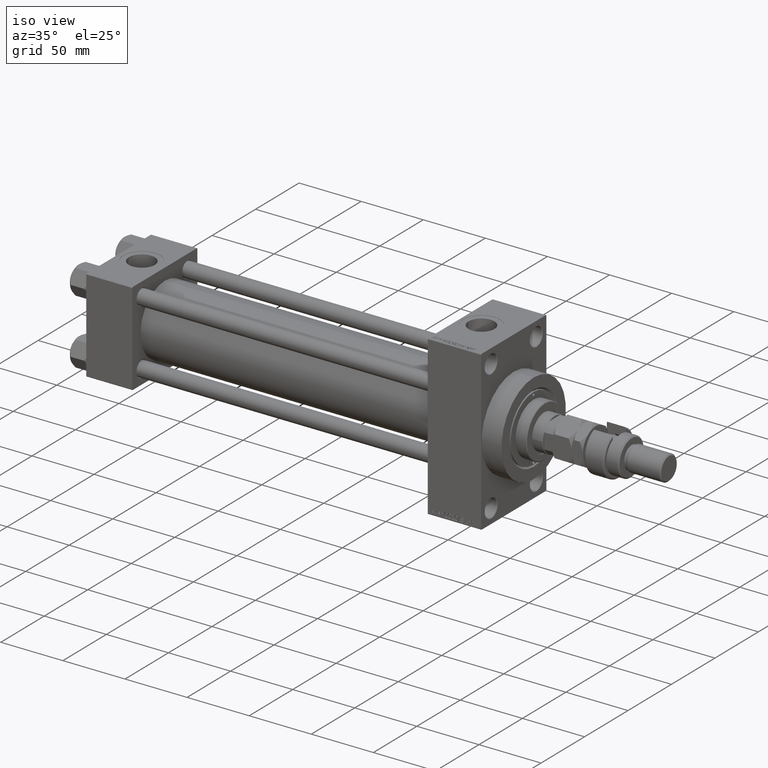
[diagram: clean part render]
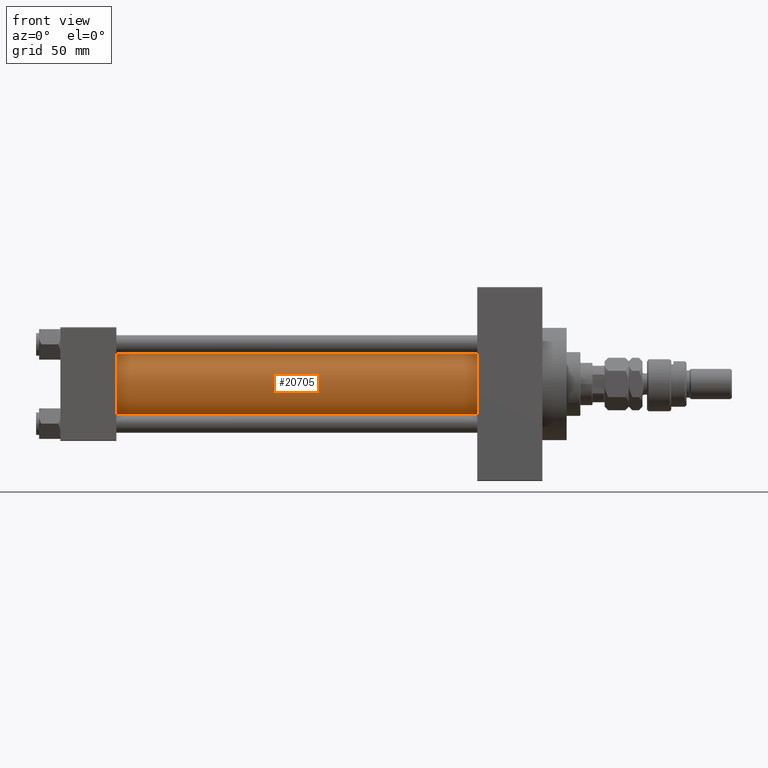
[diagram: tour spotlight — one face highlighted and labeled with its STEP entity id]
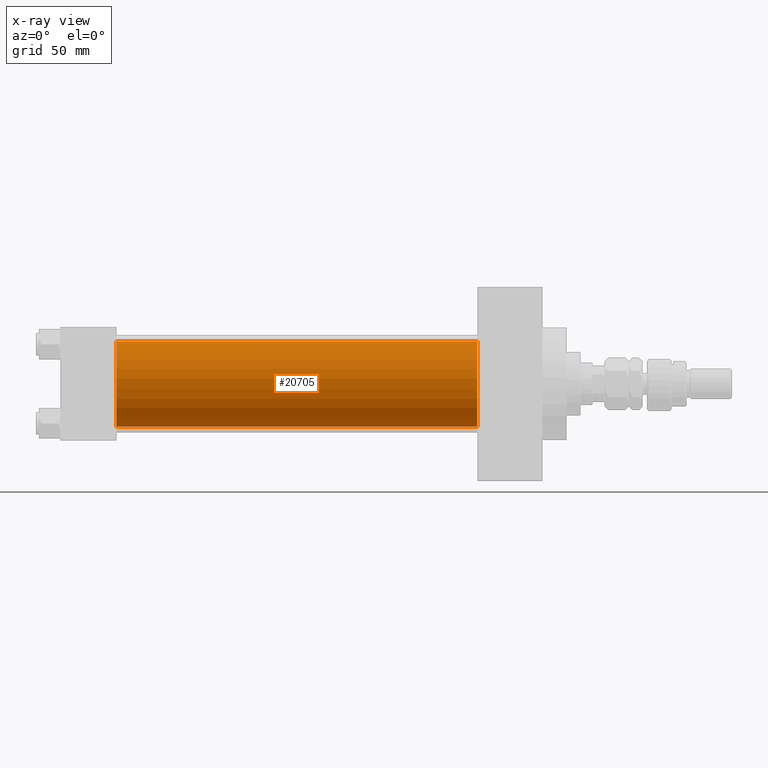
[diagram: x-ray of the same camera — body ghosted, this tour face saturated]
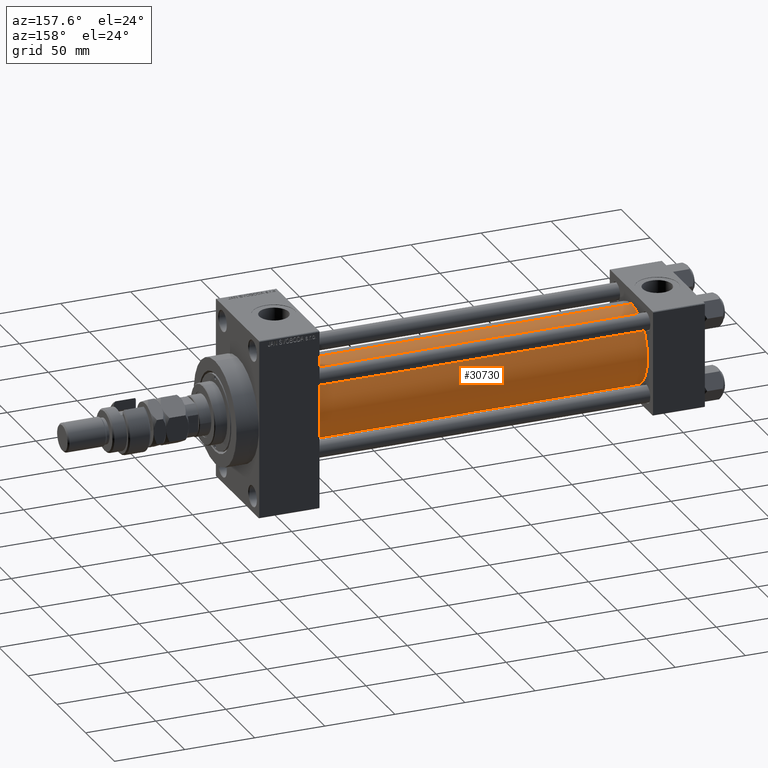
[diagram: tour spotlight — one face highlighted and labeled with its STEP entity id]
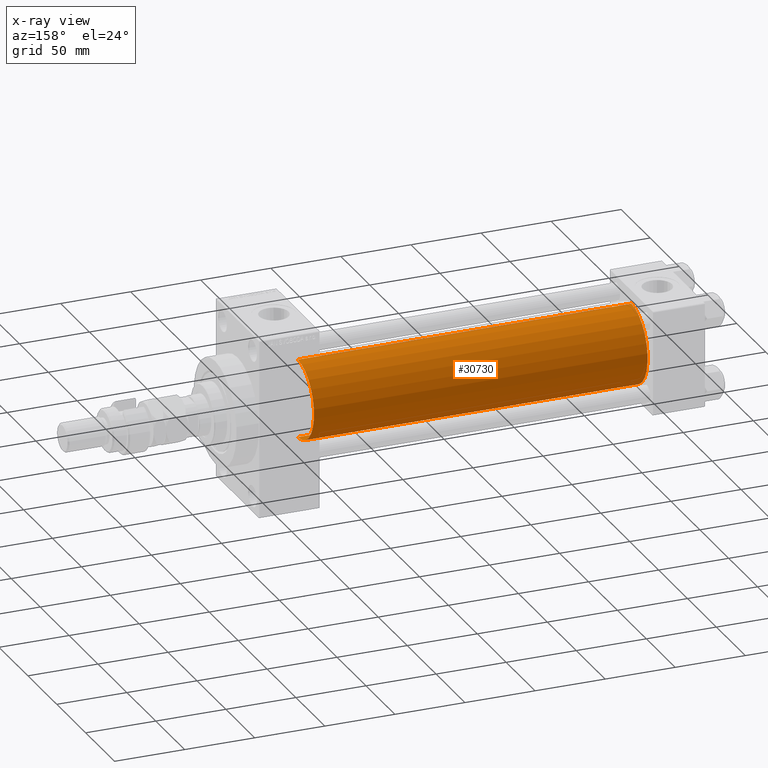
[diagram: x-ray of the same camera — body ghosted, this tour face saturated]
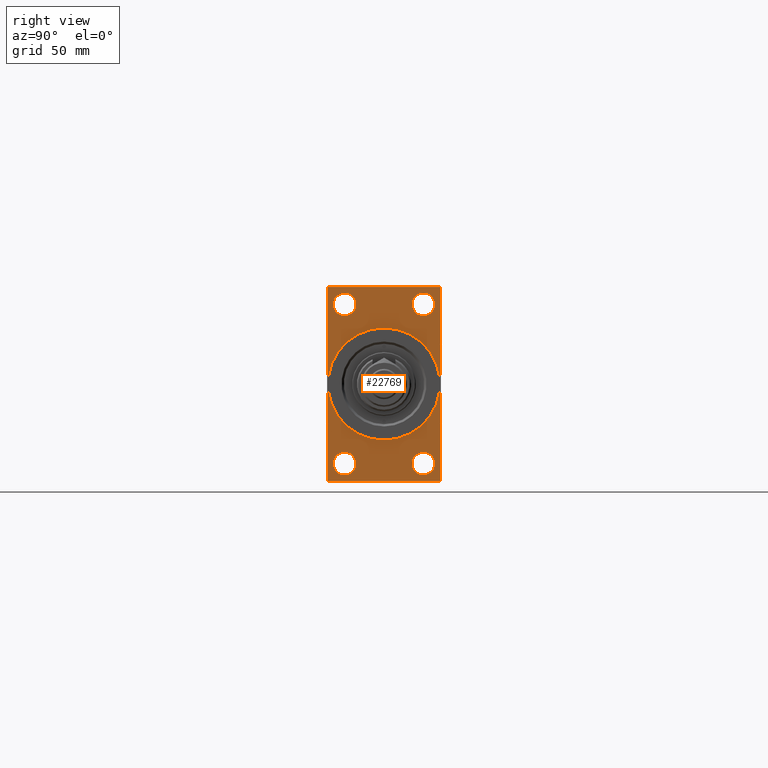
[diagram: tour spotlight — one face highlighted and labeled with its STEP entity id]
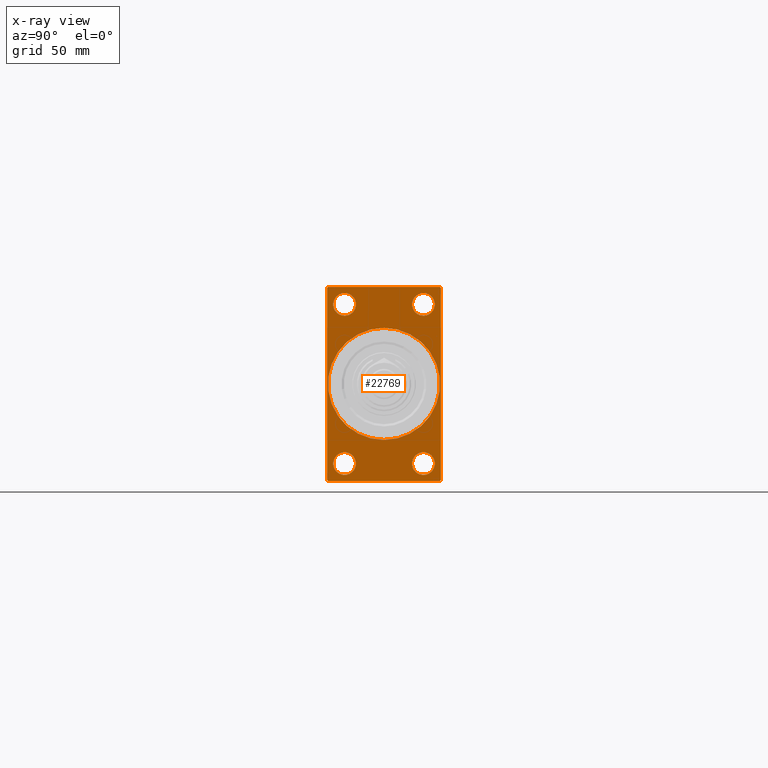
[diagram: x-ray of the same camera — body ghosted, this tour face saturated]
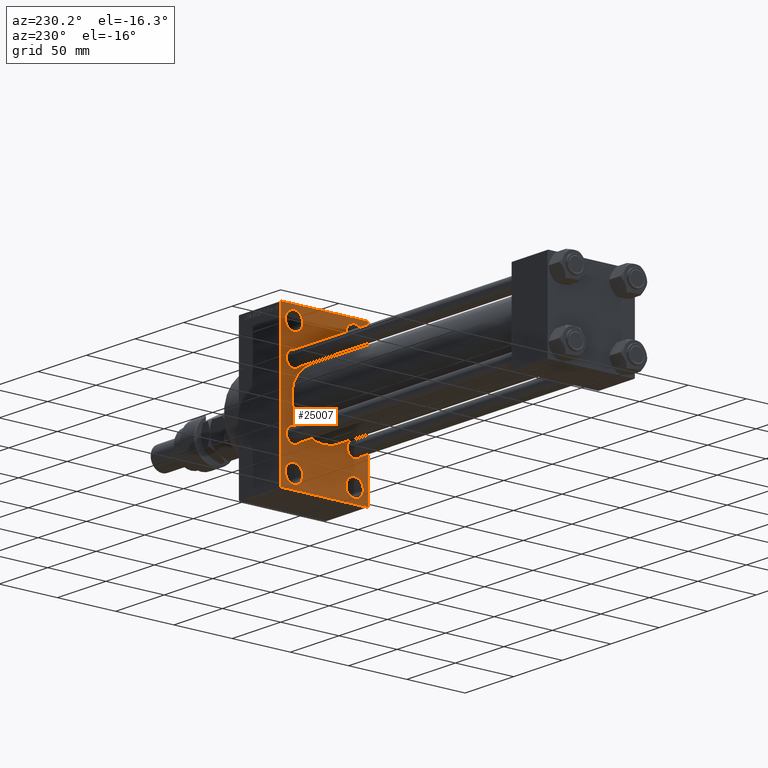
[diagram: tour spotlight — one face highlighted and labeled with its STEP entity id]
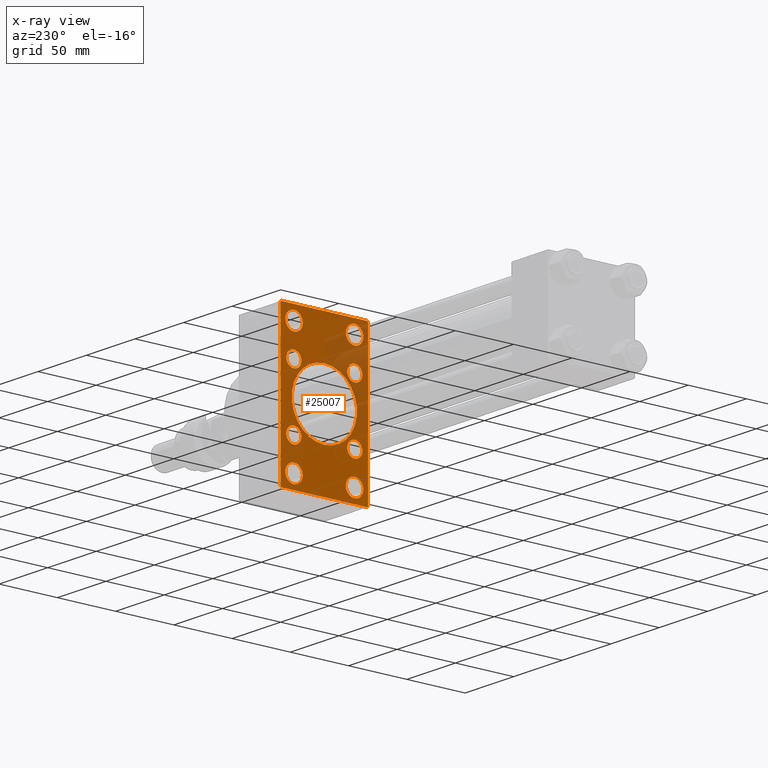
[diagram: x-ray of the same camera — body ghosted, this tour face saturated]
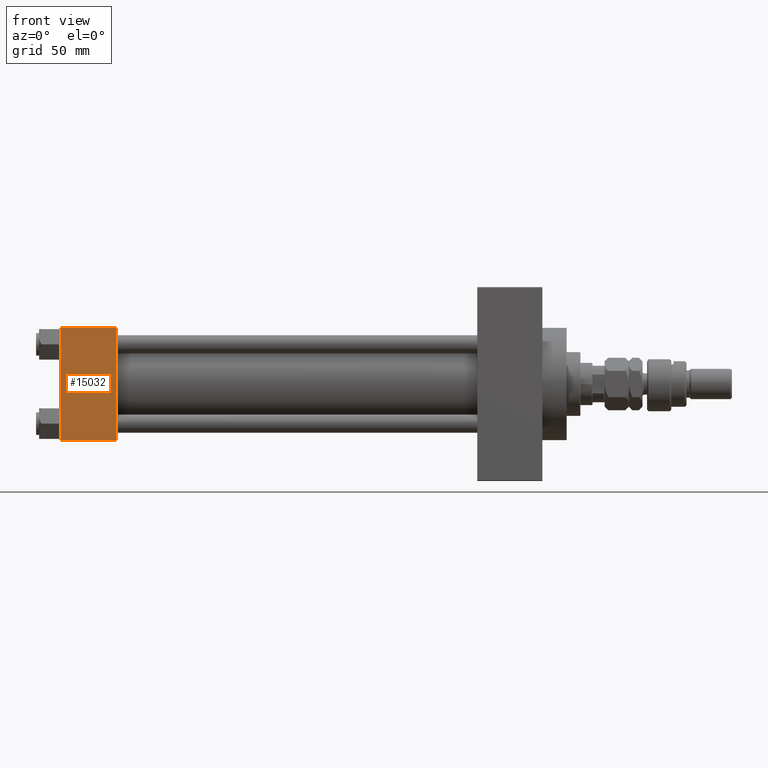
[diagram: tour spotlight — one face highlighted and labeled with its STEP entity id]
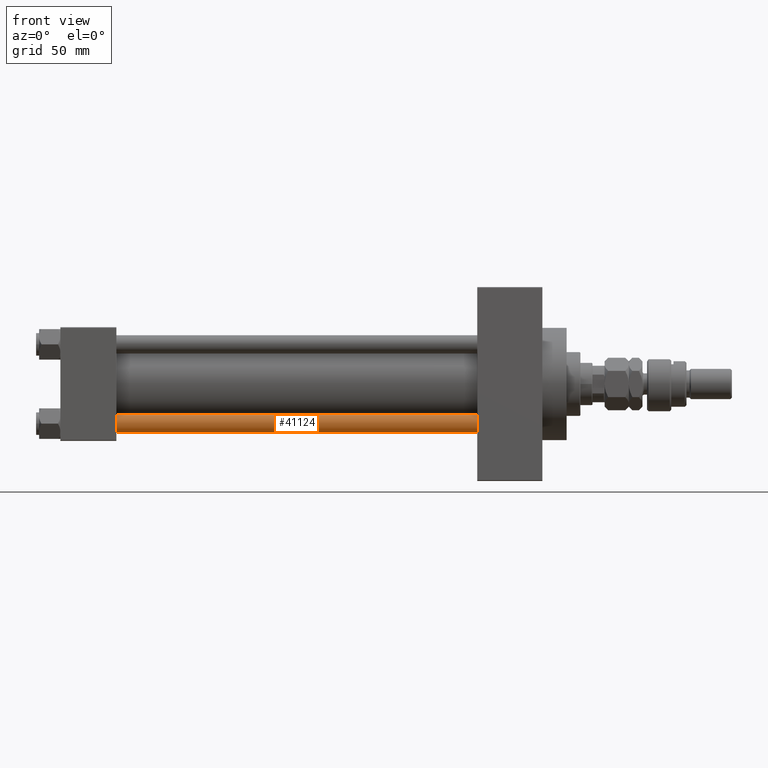
[diagram: tour spotlight — one face highlighted and labeled with its STEP entity id]
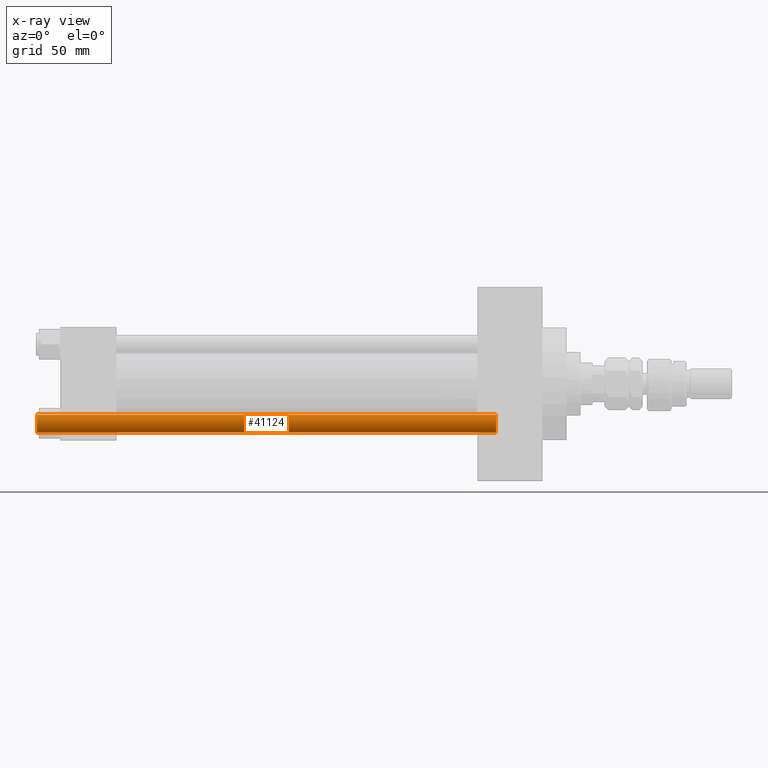
[diagram: x-ray of the same camera — body ghosted, this tour face saturated]
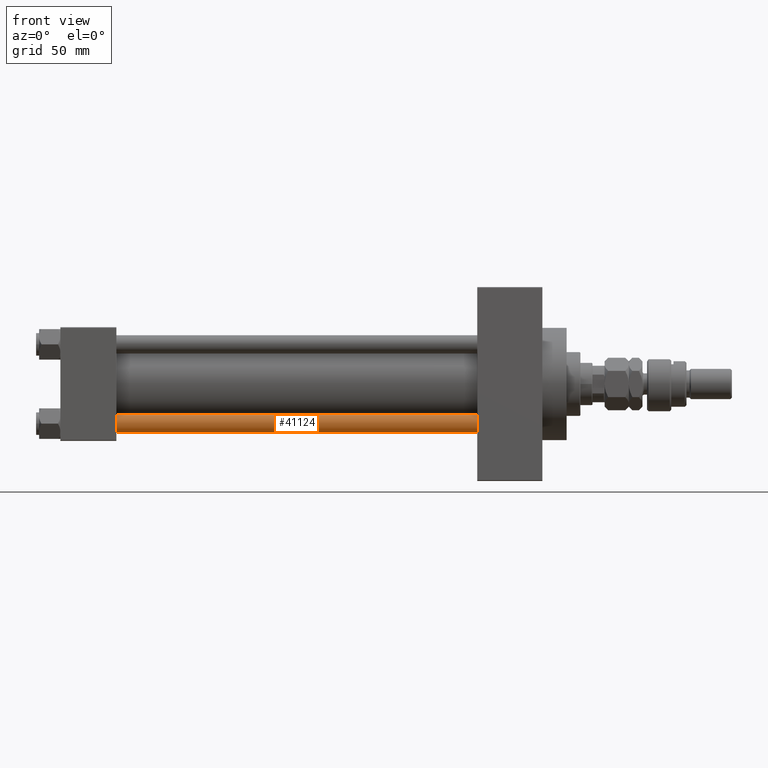
[diagram: tour spotlight — one face highlighted and labeled with its STEP entity id]
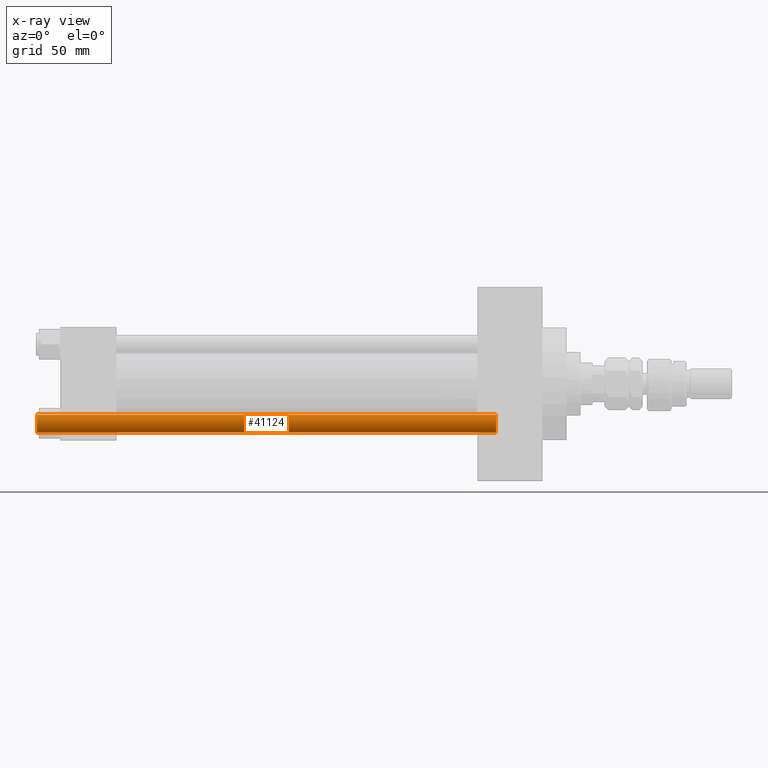
[diagram: x-ray of the same camera — body ghosted, this tour face saturated]
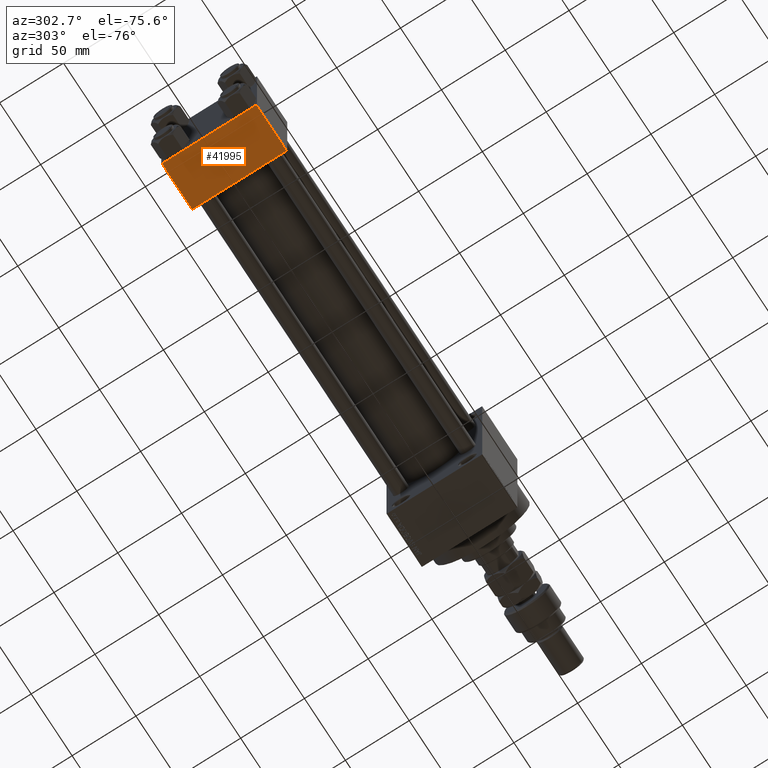
[diagram: tour spotlight — one face highlighted and labeled with its STEP entity id]
A machine part: a face-by-face anatomy tour. The part has 1196 B-rep faces; the first image is the clean iso view, then the 8 largest visible faces are spotlighted one at a time (largest first), each with its STEP entity span.

Face 1 — front view, entity #20705. An x-ray twin of the same camera follows (body ghosted, this face saturated) — the face is partly hidden behind the body. In plain terms, the highlighted cylindrical surface (partial cylindrical patch) has radius 28 mm, axis along (-1, -0, -0).
Definition (entity closure, byte-faithful):
#650 = EDGE_CURVE ( 'NONE', #15859, #15292, #43222, .T. ) ;
#1042 = DIRECTION ( 'NONE',  ( 0.000000000000000000, 0.000000000000000000, 1.000000000000000000 ) ) ;
#3798 = CARTESIAN_POINT ( 'NONE',  ( 37.00000000000000711, -2.602085213965210642E-15, 28.00000000000000000 ) ) ;
#4188 = DIRECTION ( 'NONE',  ( 1.000000000000000000, -0.000000000000000000, 0.000000000000000000 ) ) ;
#6309 = VECTOR ( 'NONE', #12177, 1000.000000000000000 ) ;
#7709 = CYLINDRICAL_SURFACE ( 'NONE', #23447, 28.00000000000000000 ) ;
#8240 = DIRECTION ( 'NONE',  ( 0.000000000000000000, 0.000000000000000000, 1.000000000000000000 ) ) ;
#11575 = ORIENTED_EDGE ( 'NONE', *, *, #15932, .T. ) ;
#12177 = DIRECTION ( 'NONE',  ( -1.000000000000000000, -0.000000000000000000, -0.000000000000000000 ) ) ;
#15292 = VERTEX_POINT ( 'NONE', #48186 ) ;
#15391 = DIRECTION ( 'NONE',  ( -1.000000000000000000, -0.000000000000000000, -0.000000000000000000 ) ) ;
#15859 = VERTEX_POINT ( 'NONE', #3798 ) ;
#15932 = EDGE_CURVE ( 'NONE', #17143, #15859, #46725, .T. ) ;
#17143 = VERTEX_POINT ( 'NONE', #50176 ) ;
#17179 = ORIENTED_EDGE ( 'NONE', *, *, #32597, .F. ) ;
#19929 = CARTESIAN_POINT ( 'NONE',  ( 37.00000000000000711, -2.602085213965210642E-15, 0.000000000000000000 ) ) ;
#19979 = EDGE_CURVE ( 'NONE', #17143, #31691, #27414, .T. ) ;
#20705 = ADVANCED_FACE ( 'NONE', ( #46818 ), #7709, .T. ) ;
#22573 = EDGE_LOOP ( 'NONE', ( #17179, #24776, #11575, #35061 ) ) ;
#23447 = AXIS2_PLACEMENT_3D ( 'NONE', #38703, #35374, #1042 ) ;
#23785 = CARTESIAN_POINT ( 'NONE',  ( 274.9999999999999432, 8.269258236473784371E-16, -28.00000000000000000 ) ) ;
#24776 = ORIENTED_EDGE ( 'NONE', *, *, #19979, .F. ) ;
#25666 = DIRECTION ( 'NONE',  ( 0.000000000000000000, 0.000000000000000000, -1.000000000000000000 ) ) ;
#27398 = CARTESIAN_POINT ( 'NONE',  ( 274.9999999999999432, -2.602085213965210642E-15, 28.00000000000000000 ) ) ;
#27414 = CIRCLE ( 'NONE', #40408, 28.00000000000000000 ) ;
#29403 = AXIS2_PLACEMENT_3D ( 'NONE', #19929, #4188, #8240 ) ;
#31691 = VERTEX_POINT ( 'NONE', #23785 ) ;
#32597 = EDGE_CURVE ( 'NONE', #31691, #15292, #50180, .T. ) ;
#34432 = CARTESIAN_POINT ( 'NONE',  ( 274.9999999999999432, 8.269258236473784371E-16, -28.00000000000000000 ) ) ;
#35061 = ORIENTED_EDGE ( 'NONE', *, *, #650, .T. ) ;
#35374 = DIRECTION ( 'NONE',  ( -1.000000000000000000, -0.000000000000000000, -0.000000000000000000 ) ) ;
#38703 = CARTESIAN_POINT ( 'NONE',  ( 274.9999999999999432, -2.602085213965210642E-15, 0.000000000000000000 ) ) ;
#40408 = AXIS2_PLACEMENT_3D ( 'NONE', #45733, #45231, #25666 ) ;
#42453 = VECTOR ( 'NONE', #15391, 1000.000000000000000 ) ;
#43222 = CIRCLE ( 'NONE', #29403, 28.00000000000000000 ) ;
#45231 = DIRECTION ( 'NONE',  ( 1.000000000000000000, 0.000000000000000000, 0.000000000000000000 ) ) ;
#45733 = CARTESIAN_POINT ( 'NONE',  ( 274.9999999999999432, -2.602085213965210642E-15, 0.000000000000000000 ) ) ;
#46725 = LINE ( 'NONE', #27398, #6309 ) ;
#46818 = FACE_OUTER_BOUND ( 'NONE', #22573, .T. ) ;
#48186 = CARTESIAN_POINT ( 'NONE',  ( 37.00000000000000711, 8.269258236473784371E-16, -28.00000000000000000 ) ) ;
#50176 = CARTESIAN_POINT ( 'NONE',  ( 274.9999999999999432, -2.602085213965210642E-15, 28.00000000000000000 ) ) ;
#50180 = LINE ( 'NONE', #34432, #42453 ) ;

Face 2 — auxiliary view, entity #30730. An x-ray twin of the same camera follows (body ghosted, this face saturated) — the face is partly hidden behind the body. In plain terms, the highlighted cylindrical surface (partial cylindrical patch) has radius 28 mm, axis along (-1, -0, -0).
Definition (entity closure, byte-faithful):
#3471 = EDGE_CURVE ( 'NONE', #31691, #17143, #23845, .T. ) ;
#3798 = CARTESIAN_POINT ( 'NONE',  ( 37.00000000000000711, -2.602085213965210642E-15, 28.00000000000000000 ) ) ;
#3960 = EDGE_CURVE ( 'NONE', #15292, #15859, #17350, .T. ) ;
#6309 = VECTOR ( 'NONE', #12177, 1000.000000000000000 ) ;
#9342 = ORIENTED_EDGE ( 'NONE', *, *, #3960, .T. ) ;
#9874 = DIRECTION ( 'NONE',  ( 0.000000000000000000, 0.000000000000000000, 1.000000000000000000 ) ) ;
#12177 = DIRECTION ( 'NONE',  ( -1.000000000000000000, -0.000000000000000000, -0.000000000000000000 ) ) ;
#15292 = VERTEX_POINT ( 'NONE', #48186 ) ;
#15391 = DIRECTION ( 'NONE',  ( -1.000000000000000000, -0.000000000000000000, -0.000000000000000000 ) ) ;
#15859 = VERTEX_POINT ( 'NONE', #3798 ) ;
#15932 = EDGE_CURVE ( 'NONE', #17143, #15859, #46725, .T. ) ;
#17143 = VERTEX_POINT ( 'NONE', #50176 ) ;
#17350 = CIRCLE ( 'NONE', #45747, 28.00000000000000000 ) ;
#17513 = DIRECTION ( 'NONE',  ( 1.000000000000000000, -0.000000000000000000, 0.000000000000000000 ) ) ;
#17637 = DIRECTION ( 'NONE',  ( 0.000000000000000000, 0.000000000000000000, -1.000000000000000000 ) ) ;
#20013 = DIRECTION ( 'NONE',  ( -1.000000000000000000, -0.000000000000000000, -0.000000000000000000 ) ) ;
#23785 = CARTESIAN_POINT ( 'NONE',  ( 274.9999999999999432, 8.269258236473784371E-16, -28.00000000000000000 ) ) ;
#23845 = CIRCLE ( 'NONE', #47371, 28.00000000000000000 ) ;
#25996 = CARTESIAN_POINT ( 'NONE',  ( 274.9999999999999432, -2.602085213965210642E-15, 0.000000000000000000 ) ) ;
#26071 = ORIENTED_EDGE ( 'NONE', *, *, #15932, .F. ) ;
#27398 = CARTESIAN_POINT ( 'NONE',  ( 274.9999999999999432, -2.602085213965210642E-15, 28.00000000000000000 ) ) ;
#27870 = CARTESIAN_POINT ( 'NONE',  ( 274.9999999999999432, -2.602085213965210642E-15, 0.000000000000000000 ) ) ;
#28276 = EDGE_LOOP ( 'NONE', ( #46009, #35616, #9342, #26071 ) ) ;
#30730 = ADVANCED_FACE ( 'NONE', ( #35511 ), #31941, .T. ) ;
#31691 = VERTEX_POINT ( 'NONE', #23785 ) ;
#31941 = CYLINDRICAL_SURFACE ( 'NONE', #32636, 28.00000000000000000 ) ;
#32597 = EDGE_CURVE ( 'NONE', #31691, #15292, #50180, .T. ) ;
#32636 = AXIS2_PLACEMENT_3D ( 'NONE', #27870, #20013, #39339 ) ;
#33247 = CARTESIAN_POINT ( 'NONE',  ( 37.00000000000000711, -2.602085213965210642E-15, 0.000000000000000000 ) ) ;
#34432 = CARTESIAN_POINT ( 'NONE',  ( 274.9999999999999432, 8.269258236473784371E-16, -28.00000000000000000 ) ) ;
#35511 = FACE_OUTER_BOUND ( 'NONE', #28276, .T. ) ;
#35616 = ORIENTED_EDGE ( 'NONE', *, *, #32597, .T. ) ;
#39339 = DIRECTION ( 'NONE',  ( 0.000000000000000000, 0.000000000000000000, 1.000000000000000000 ) ) ;
#42453 = VECTOR ( 'NONE', #15391, 1000.000000000000000 ) ;
#45747 = AXIS2_PLACEMENT_3D ( 'NONE', #33247, #17513, #9874 ) ;
#46009 = ORIENTED_EDGE ( 'NONE', *, *, #3471, .F. ) ;
#46725 = LINE ( 'NONE', #27398, #6309 ) ;
#47371 = AXIS2_PLACEMENT_3D ( 'NONE', #25996, #49381, #17637 ) ;
#48186 = CARTESIAN_POINT ( 'NONE',  ( 37.00000000000000711, 8.269258236473784371E-16, -28.00000000000000000 ) ) ;
#49381 = DIRECTION ( 'NONE',  ( 1.000000000000000000, 0.000000000000000000, 0.000000000000000000 ) ) ;
#50176 = CARTESIAN_POINT ( 'NONE',  ( 274.9999999999999432, -2.602085213965210642E-15, 28.00000000000000000 ) ) ;
#50180 = LINE ( 'NONE', #34432, #42453 ) ;

Face 3 — right view, entity #22769. An x-ray twin of the same camera follows (body ghosted, this face saturated) — the face is partly hidden behind the body. In plain terms, the highlighted planar face has unit normal (-1, 0, 0).
Definition (entity closure, byte-faithful):
#282 = AXIS2_PLACEMENT_3D ( 'NONE', #3373, #6680, #34887 ) ;
#1374 = CARTESIAN_POINT ( 'NONE',  ( 317.9999999999999432, -37.49999999999999289, 63.49999999999991473 ) ) ;
#1475 = CARTESIAN_POINT ( 'NONE',  ( 317.9999999999999432, -36.99999999999993605, -64.00000000000001421 ) ) ;
#1633 = ORIENTED_EDGE ( 'NONE', *, *, #39851, .T. ) ;
#1797 = CARTESIAN_POINT ( 'NONE',  ( 317.9999999999999432, 36.99999999999994316, 63.99999999999998579 ) ) ;
#2216 = AXIS2_PLACEMENT_3D ( 'NONE', #47719, #36036, #43420 ) ;
#3192 = AXIS2_PLACEMENT_3D ( 'NONE', #23037, #33698, #30121 ) ;
#3298 = DIRECTION ( 'NONE',  ( 0.000000000000000000, 0.000000000000000000, 1.000000000000000000 ) ) ;
#3373 = CARTESIAN_POINT ( 'NONE',  ( 317.9999999999999432, -25.99999999999999645, -52.49999999999999289 ) ) ;
#3666 = ORIENTED_EDGE ( 'NONE', *, *, #33115, .T. ) ;
#3695 = DIRECTION ( 'NONE',  ( -1.000000000000000000, 0.000000000000000000, -0.000000000000000000 ) ) ;
#4348 = CARTESIAN_POINT ( 'NONE',  ( 317.9999999999999432, -37.49999999999999289, -63.49999999999997158 ) ) ;
#4600 = CARTESIAN_POINT ( 'NONE',  ( 317.9999999999999432, -25.99999999999999645, 44.99999999999999289 ) ) ;
#4645 = VERTEX_POINT ( 'NONE', #23547 ) ;
#5069 = AXIS2_PLACEMENT_3D ( 'NONE', #6334, #37336, #10901 ) ;
#5255 = AXIS2_PLACEMENT_3D ( 'NONE', #15893, #3695, #26291 ) ;
#5411 = CARTESIAN_POINT ( 'NONE',  ( 317.9999999999999432, -25.99999999999999645, -44.99999999999998579 ) ) ;
#6334 = CARTESIAN_POINT ( 'NONE',  ( 317.9999999999999432, 26.00000000000000000, 52.49999999999999289 ) ) ;
#6680 = DIRECTION ( 'NONE',  ( -1.000000000000000000, 0.000000000000000000, -0.000000000000000000 ) ) ;
#7168 = AXIS2_PLACEMENT_3D ( 'NONE', #9161, #28712, #44228 ) ;
#7203 = AXIS2_PLACEMENT_3D ( 'NONE', #30215, #10927, #3298 ) ;
#8026 = ORIENTED_EDGE ( 'NONE', *, *, #24522, .F. ) ;
#8181 = DIRECTION ( 'NONE',  ( -1.000000000000000000, 0.000000000000000000, -0.000000000000000000 ) ) ;
#8571 = EDGE_CURVE ( 'NONE', #8715, #47554, #27689, .T. ) ;
#8715 = VERTEX_POINT ( 'NONE', #24890 ) ;
#9161 = CARTESIAN_POINT ( 'NONE',  ( 317.9999999999999432, 26.00000000000000000, -52.49999999999999289 ) ) ;
#9206 = CIRCLE ( 'NONE', #282, 7.500000000000007105 ) ;
#9209 = LINE ( 'NONE', #12788, #26029 ) ;
#9343 = VERTEX_POINT ( 'NONE', #21965 ) ;
#9368 = LINE ( 'NONE', #1475, #45729 ) ;
#9386 = VERTEX_POINT ( 'NONE', #27024 ) ;
#9439 = ORIENTED_EDGE ( 'NONE', *, *, #16837, .T. ) ;
#9449 = ORIENTED_EDGE ( 'NONE', *, *, #17600, .T. ) ;
#9583 = FACE_BOUND ( 'NONE', #27089, .T. ) ;
#9869 = VERTEX_POINT ( 'NONE', #26816 ) ;
#9936 = LINE ( 'NONE', #1797, #36411 ) ;
#10901 = DIRECTION ( 'NONE',  ( 0.000000000000000000, 0.000000000000000000, 1.000000000000000000 ) ) ;
#10927 = DIRECTION ( 'NONE',  ( -1.000000000000000000, 0.000000000000000000, -0.000000000000000000 ) ) ;
#11063 = CARTESIAN_POINT ( 'NONE',  ( 317.9999999999999432, 37.50000000000000000, 63.49999999999992895 ) ) ;
#11073 = ORIENTED_EDGE ( 'NONE', *, *, #36916, .F. ) ;
#11129 = DIRECTION ( 'NONE',  ( 0.000000000000000000, 0.000000000000000000, -1.000000000000000000 ) ) ;
#11266 = CIRCLE ( 'NONE', #16120, 7.500000000000007105 ) ;
#11351 = PLANE ( 'NONE',  #3192 ) ;
#11756 = CARTESIAN_POINT ( 'NONE',  ( 317.9999999999999432, 26.00000000000000000, 60.00000000000000000 ) ) ;
#11876 = CARTESIAN_POINT ( 'NONE',  ( 317.9999999999999432, -36.99999999999992895, 63.99999999999997158 ) ) ;
#12661 = EDGE_LOOP ( 'NONE', ( #25751, #11073 ) ) ;
#12788 = CARTESIAN_POINT ( 'NONE',  ( 317.9999999999999432, 37.49999999999999289, -63.50000000000001421 ) ) ;
#12868 = VERTEX_POINT ( 'NONE', #32573 ) ;
#12968 = CARTESIAN_POINT ( 'NONE',  ( 317.9999999999999432, -37.49999999999999289, 63.99999999999997158 ) ) ;
#13097 = CARTESIAN_POINT ( 'NONE',  ( 317.9999999999999432, 37.49999999999999289, -64.00000000000000000 ) ) ;
#15709 = CIRCLE ( 'NONE', #35282, 37.00000000000000000 ) ;
#15893 = CARTESIAN_POINT ( 'NONE',  ( 317.9999999999999432, -25.99999999999999645, -52.49999999999999289 ) ) ;
#16120 = AXIS2_PLACEMENT_3D ( 'NONE', #31783, #8181, #39183 ) ;
#16385 = CARTESIAN_POINT ( 'NONE',  ( 317.9999999999999432, 36.99999999999999289, -64.00000000000000000 ) ) ;
#16647 = LINE ( 'NONE', #1374, #36218 ) ;
#16837 = EDGE_CURVE ( 'NONE', #20272, #35578, #43678, .T. ) ;
#17456 = VERTEX_POINT ( 'NONE', #40728 ) ;
#17600 = EDGE_CURVE ( 'NONE', #32433, #9386, #11266, .T. ) ;
#17845 = CIRCLE ( 'NONE', #31615, 7.500000000000007105 ) ;
#17904 = ORIENTED_EDGE ( 'NONE', *, *, #17923, .T. ) ;
#17923 = EDGE_CURVE ( 'NONE', #28999, #23958, #26652, .T. ) ;
#18808 = VECTOR ( 'NONE', #38028, 1000.000000000000000 ) ;
#18972 = ORIENTED_EDGE ( 'NONE', *, *, #8571, .T. ) ;
#19643 = ORIENTED_EDGE ( 'NONE', *, *, #31345, .T. ) ;
#20002 = ORIENTED_EDGE ( 'NONE', *, *, #27045, .T. ) ;
#20191 = ORIENTED_EDGE ( 'NONE', *, *, #21282, .T. ) ;
#20272 = VERTEX_POINT ( 'NONE', #37749 ) ;
#20808 = DIRECTION ( 'NONE',  ( 0.000000000000000000, 0.7071067811865574537, -0.7071067811865376918 ) ) ;
#20837 = ORIENTED_EDGE ( 'NONE', *, *, #24861, .T. ) ;
#21274 = FACE_BOUND ( 'NONE', #44034, .T. ) ;
#21282 = EDGE_CURVE ( 'NONE', #39774, #12868, #9936, .T. ) ;
#21965 = CARTESIAN_POINT ( 'NONE',  ( 317.9999999999999432, 37.49999999999999289, -63.50000000000001421 ) ) ;
#22060 = DIRECTION ( 'NONE',  ( 1.000000000000000000, 0.000000000000000000, 0.000000000000000000 ) ) ;
#22199 = ORIENTED_EDGE ( 'NONE', *, *, #27768, .T. ) ;
#22769 = ADVANCED_FACE ( 'NONE', ( #48200, #9583, #40584, #21274, #44646, #45636 ), #11351, .F. ) ;
#23037 = CARTESIAN_POINT ( 'NONE',  ( 317.9999999999999432, 0.000000000000000000, 0.000000000000000000 ) ) ;
#23347 = VERTEX_POINT ( 'NONE', #29193 ) ;
#23523 = EDGE_CURVE ( 'NONE', #35578, #20272, #17845, .T. ) ;
#23547 = CARTESIAN_POINT ( 'NONE',  ( 317.9999999999999432, 0.000000000000000000, 37.00000000000000000 ) ) ;
#23958 = VERTEX_POINT ( 'NONE', #41530 ) ;
#24522 = EDGE_CURVE ( 'NONE', #39774, #9343, #49509, .T. ) ;
#24584 = CARTESIAN_POINT ( 'NONE',  ( 317.9999999999999432, 26.00000000000000000, -52.49999999999999289 ) ) ;
#24861 = EDGE_CURVE ( 'NONE', #12868, #26494, #41841, .T. ) ;
#24890 = CARTESIAN_POINT ( 'NONE',  ( 317.9999999999999432, -37.49999999999999289, 63.49999999999991473 ) ) ;
#25169 = CIRCLE ( 'NONE', #32484, 7.500000000000007105 ) ;
#25286 = VECTOR ( 'NONE', #33501, 1000.000000000000000 ) ;
#25751 = ORIENTED_EDGE ( 'NONE', *, *, #50043, .F. ) ;
#25935 = DIRECTION ( 'NONE',  ( 0.000000000000000000, -0.7071067811865474617, 0.7071067811865474617 ) ) ;
#26028 = VERTEX_POINT ( 'NONE', #5411 ) ;
#26029 = VECTOR ( 'NONE', #47087, 1000.000000000000000 ) ;
#26291 = DIRECTION ( 'NONE',  ( 0.000000000000000000, 0.000000000000000000, 1.000000000000000000 ) ) ;
#26494 = VERTEX_POINT ( 'NONE', #11876 ) ;
#26652 = CIRCLE ( 'NONE', #7203, 7.500000000000007105 ) ;
#26816 = CARTESIAN_POINT ( 'NONE',  ( 317.9999999999999432, -25.99999999999999645, -60.00000000000000000 ) ) ;
#26835 = EDGE_LOOP ( 'NONE', ( #18972, #3666, #43636, #22199, #8026, #20191, #20837, #28282 ) ) ;
#27024 = CARTESIAN_POINT ( 'NONE',  ( 317.9999999999999432, -25.99999999999999645, 60.00000000000000711 ) ) ;
#27045 = EDGE_CURVE ( 'NONE', #9386, #32433, #25169, .T. ) ;
#27089 = EDGE_LOOP ( 'NONE', ( #1633, #44389 ) ) ;
#27136 = VECTOR ( 'NONE', #27938, 1000.000000000000000 ) ;
#27689 = LINE ( 'NONE', #12968, #27136 ) ;
#27768 = EDGE_CURVE ( 'NONE', #40846, #9343, #9209, .T. ) ;
#27938 = DIRECTION ( 'NONE',  ( 0.000000000000000000, 0.000000000000000000, -1.000000000000000000 ) ) ;
#28282 = ORIENTED_EDGE ( 'NONE', *, *, #43970, .T. ) ;
#28315 = DIRECTION ( 'NONE',  ( 0.000000000000000000, -1.000000000000000000, -1.850371707708594563E-16 ) ) ;
#28712 = DIRECTION ( 'NONE',  ( -1.000000000000000000, 0.000000000000000000, -0.000000000000000000 ) ) ;
#28787 = CARTESIAN_POINT ( 'NONE',  ( 317.9999999999999432, 26.00000000000000000, -44.99999999999998579 ) ) ;
#28999 = VERTEX_POINT ( 'NONE', #11756 ) ;
#29193 = CARTESIAN_POINT ( 'NONE',  ( 317.9999999999999432, -36.99999999999993605, -64.00000000000001421 ) ) ;
#29428 = CARTESIAN_POINT ( 'NONE',  ( 317.9999999999999432, 37.50000000000000000, 63.99999999999998579 ) ) ;
#29859 = EDGE_LOOP ( 'NONE', ( #9439, #43783 ) ) ;
#30121 = DIRECTION ( 'NONE',  ( -0.000000000000000000, 0.000000000000000000, 1.000000000000000000 ) ) ;
#30215 = CARTESIAN_POINT ( 'NONE',  ( 317.9999999999999432, 26.00000000000000000, 52.49999999999999289 ) ) ;
#30631 = CARTESIAN_POINT ( 'NONE',  ( 317.9999999999999432, 37.50000000000000000, 63.99999999999998579 ) ) ;
#31345 = EDGE_CURVE ( 'NONE', #23958, #28999, #40767, .T. ) ;
#31615 = AXIS2_PLACEMENT_3D ( 'NONE', #24584, #31948, #43154 ) ;
#31783 = CARTESIAN_POINT ( 'NONE',  ( 317.9999999999999432, -25.99999999999999645, 52.50000000000000000 ) ) ;
#31948 = DIRECTION ( 'NONE',  ( -1.000000000000000000, 0.000000000000000000, -0.000000000000000000 ) ) ;
#32433 = VERTEX_POINT ( 'NONE', #4600 ) ;
#32484 = AXIS2_PLACEMENT_3D ( 'NONE', #33319, #45021, #32568 ) ;
#32568 = DIRECTION ( 'NONE',  ( 0.000000000000000000, 0.000000000000000000, 1.000000000000000000 ) ) ;
#32573 = CARTESIAN_POINT ( 'NONE',  ( 317.9999999999999432, 36.99999999999994316, 63.99999999999998579 ) ) ;
#33115 = EDGE_CURVE ( 'NONE', #47554, #23347, #9368, .T. ) ;
#33136 = LINE ( 'NONE', #13097, #37898 ) ;
#33319 = CARTESIAN_POINT ( 'NONE',  ( 317.9999999999999432, -25.99999999999999645, 52.50000000000000000 ) ) ;
#33501 = DIRECTION ( 'NONE',  ( 0.000000000000000000, -5.421010862427522170E-17, -1.000000000000000000 ) ) ;
#33698 = DIRECTION ( 'NONE',  ( -1.000000000000000000, 0.000000000000000000, -0.000000000000000000 ) ) ;
#33806 = EDGE_CURVE ( 'NONE', #26028, #9869, #9206, .T. ) ;
#34461 = CIRCLE ( 'NONE', #5255, 7.500000000000007105 ) ;
#34887 = DIRECTION ( 'NONE',  ( 0.000000000000000000, 0.000000000000000000, 1.000000000000000000 ) ) ;
#35282 = AXIS2_PLACEMENT_3D ( 'NONE', #41371, #22060, #11129 ) ;
#35578 = VERTEX_POINT ( 'NONE', #28787 ) ;
#36036 = DIRECTION ( 'NONE',  ( 1.000000000000000000, 0.000000000000000000, 0.000000000000000000 ) ) ;
#36218 = VECTOR ( 'NONE', #44326, 1000.000000000000000 ) ;
#36411 = VECTOR ( 'NONE', #25935, 1000.000000000000114 ) ;
#36916 = EDGE_CURVE ( 'NONE', #17456, #4645, #15709, .T. ) ;
#37336 = DIRECTION ( 'NONE',  ( -1.000000000000000000, 0.000000000000000000, -0.000000000000000000 ) ) ;
#37749 = CARTESIAN_POINT ( 'NONE',  ( 317.9999999999999432, 26.00000000000000000, -60.00000000000000000 ) ) ;
#37898 = VECTOR ( 'NONE', #28315, 1000.000000000000000 ) ;
#38028 = DIRECTION ( 'NONE',  ( 0.000000000000000000, -1.000000000000000000, -1.850371707708594563E-16 ) ) ;
#39183 = DIRECTION ( 'NONE',  ( 0.000000000000000000, 0.000000000000000000, 1.000000000000000000 ) ) ;
#39774 = VERTEX_POINT ( 'NONE', #11063 ) ;
#39851 = EDGE_CURVE ( 'NONE', #9869, #26028, #34461, .T. ) ;
#40584 = FACE_BOUND ( 'NONE', #29859, .T. ) ;
#40728 = CARTESIAN_POINT ( 'NONE',  ( 317.9999999999999432, 4.531193156845206793E-15, -37.00000000000000000 ) ) ;
#40767 = CIRCLE ( 'NONE', #5069, 7.500000000000007105 ) ;
#40846 = VERTEX_POINT ( 'NONE', #16385 ) ;
#41371 = CARTESIAN_POINT ( 'NONE',  ( 317.9999999999999432, 0.000000000000000000, 0.000000000000000000 ) ) ;
#41530 = CARTESIAN_POINT ( 'NONE',  ( 317.9999999999999432, 26.00000000000000000, 44.99999999999998579 ) ) ;
#41770 = EDGE_LOOP ( 'NONE', ( #9449, #20002 ) ) ;
#41841 = LINE ( 'NONE', #30631, #18808 ) ;
#43154 = DIRECTION ( 'NONE',  ( 0.000000000000000000, 0.000000000000000000, 1.000000000000000000 ) ) ;
#43420 = DIRECTION ( 'NONE',  ( 0.000000000000000000, 0.000000000000000000, -1.000000000000000000 ) ) ;
#43636 = ORIENTED_EDGE ( 'NONE', *, *, #44937, .F. ) ;
#43678 = CIRCLE ( 'NONE', #7168, 7.500000000000007105 ) ;
#43783 = ORIENTED_EDGE ( 'NONE', *, *, #23523, .T. ) ;
#43970 = EDGE_CURVE ( 'NONE', #26494, #8715, #16647, .T. ) ;
#44034 = EDGE_LOOP ( 'NONE', ( #19643, #17904 ) ) ;
#44228 = DIRECTION ( 'NONE',  ( 0.000000000000000000, 0.000000000000000000, 1.000000000000000000 ) ) ;
#44326 = DIRECTION ( 'NONE',  ( -0.000000000000000000, -0.7071067811865524577, -0.7071067811865426878 ) ) ;
#44389 = ORIENTED_EDGE ( 'NONE', *, *, #33806, .T. ) ;
#44646 = FACE_BOUND ( 'NONE', #12661, .T. ) ;
#44937 = EDGE_CURVE ( 'NONE', #40846, #23347, #33136, .T. ) ;
#45021 = DIRECTION ( 'NONE',  ( -1.000000000000000000, 0.000000000000000000, -0.000000000000000000 ) ) ;
#45636 = FACE_OUTER_BOUND ( 'NONE', #26835, .T. ) ;
#45729 = VECTOR ( 'NONE', #20808, 999.9999999999998863 ) ;
#47087 = DIRECTION ( 'NONE',  ( -0.000000000000000000, 0.7071067811865573427, 0.7071067811865378028 ) ) ;
#47554 = VERTEX_POINT ( 'NONE', #4348 ) ;
#47719 = CARTESIAN_POINT ( 'NONE',  ( 317.9999999999999432, 0.000000000000000000, 0.000000000000000000 ) ) ;
#48200 = FACE_BOUND ( 'NONE', #41770, .T. ) ;
#48502 = CIRCLE ( 'NONE', #2216, 37.00000000000000000 ) ;
#49509 = LINE ( 'NONE', #29428, #25286 ) ;
#50043 = EDGE_CURVE ( 'NONE', #4645, #17456, #48502, .T. ) ;

Face 4 — auxiliary view, entity #25007. An x-ray twin of the same camera follows (body ghosted, this face saturated) — the face is partly hidden behind the body. In plain terms, the highlighted planar face has unit normal (-1, 0, 0).
Definition (entity closure, byte-faithful):
#142 = DIRECTION ( 'NONE',  ( 0.000000000000000000, 0.000000000000000000, 1.000000000000000000 ) ) ;
#205 = EDGE_CURVE ( 'NONE', #34309, #22715, #25356, .T. ) ;
#334 = DIRECTION ( 'NONE',  ( 1.000000000000000000, -0.000000000000000000, 0.000000000000000000 ) ) ;
#524 = ORIENTED_EDGE ( 'NONE', *, *, #45104, .T. ) ;
#635 = FACE_BOUND ( 'NONE', #18930, .T. ) ;
#884 = FACE_BOUND ( 'NONE', #33295, .T. ) ;
#956 = AXIS2_PLACEMENT_3D ( 'NONE', #34718, #34959, #142 ) ;
#1056 = ORIENTED_EDGE ( 'NONE', *, *, #3009, .T. ) ;
#1132 = FACE_BOUND ( 'NONE', #47307, .T. ) ;
#1161 = DIRECTION ( 'NONE',  ( 1.000000000000000000, -0.000000000000000000, 0.000000000000000000 ) ) ;
#1218 = EDGE_CURVE ( 'NONE', #31575, #26172, #21306, .T. ) ;
#1336 = VERTEX_POINT ( 'NONE', #30418 ) ;
#1485 = DIRECTION ( 'NONE',  ( 0.000000000000000000, 0.000000000000000000, 1.000000000000000000 ) ) ;
#1626 = EDGE_LOOP ( 'NONE', ( #14386, #21517 ) ) ;
#1702 = EDGE_CURVE ( 'NONE', #6198, #20578, #9858, .T. ) ;
#1785 = VERTEX_POINT ( 'NONE', #35368 ) ;
#1919 = CIRCLE ( 'NONE', #26260, 6.500000000000008882 ) ;
#2004 = DIRECTION ( 'NONE',  ( 0.000000000000000000, -1.000000000000000000, -1.850371707708594563E-16 ) ) ;
#2496 = EDGE_LOOP ( 'NONE', ( #24459, #26487 ) ) ;
#2595 = CIRCLE ( 'NONE', #956, 7.499999999999951150 ) ;
#2788 = EDGE_CURVE ( 'NONE', #15116, #7085, #5958, .T. ) ;
#2886 = VERTEX_POINT ( 'NONE', #41696 ) ;
#3009 = EDGE_CURVE ( 'NONE', #7102, #5865, #1919, .T. ) ;
#3063 = CIRCLE ( 'NONE', #43661, 6.500000000000008882 ) ;
#3100 = CARTESIAN_POINT ( 'NONE',  ( 274.9999999999999432, -26.14999999999999147, -26.15000000000000924 ) ) ;
#3142 = CIRCLE ( 'NONE', #50227, 6.500000000000008882 ) ;
#3354 = LINE ( 'NONE', #3616, #6170 ) ;
#3471 = EDGE_CURVE ( 'NONE', #31691, #17143, #23845, .T. ) ;
#3502 = ORIENTED_EDGE ( 'NONE', *, *, #22803, .T. ) ;
#3616 = CARTESIAN_POINT ( 'NONE',  ( 274.9999999999999432, -50.49999999999945999, -50.50000000000086686 ) ) ;
#3685 = CIRCLE ( 'NONE', #14193, 7.499999999999951150 ) ;
#3687 = EDGE_CURVE ( 'NONE', #5865, #7102, #27881, .T. ) ;
#3865 = CARTESIAN_POINT ( 'NONE',  ( 274.9999999999999432, 50.49999999999996447, 50.49999999999996447 ) ) ;
#3912 = ORIENTED_EDGE ( 'NONE', *, *, #3471, .T. ) ;
#4013 = EDGE_CURVE ( 'NONE', #27727, #45968, #18223, .T. ) ;
#4139 = CARTESIAN_POINT ( 'NONE',  ( 274.9999999999999432, 36.99999999999999289, -64.00000000000000000 ) ) ;
#4319 = CARTESIAN_POINT ( 'NONE',  ( 274.9999999999999432, 26.14999999999999858, -26.15000000000000213 ) ) ;
#4605 = CARTESIAN_POINT ( 'NONE',  ( 274.9999999999999432, 26.00000000000000000, -45.00000000000004263 ) ) ;
#4671 = EDGE_LOOP ( 'NONE', ( #6961, #40011, #6071, #33643, #37710, #14629, #40133, #7590 ) ) ;
#4712 = DIRECTION ( 'NONE',  ( -0.000000000000000000, 0.000000000000000000, 1.000000000000000000 ) ) ;
#5550 = CIRCLE ( 'NONE', #36415, 7.499999999999951150 ) ;
#5865 = VERTEX_POINT ( 'NONE', #23496 ) ;
#5958 = CIRCLE ( 'NONE', #15696, 6.500000000000008882 ) ;
#6071 = ORIENTED_EDGE ( 'NONE', *, *, #35800, .F. ) ;
#6151 = FACE_BOUND ( 'NONE', #1626, .T. ) ;
#6170 = VECTOR ( 'NONE', #46048, 999.9999999999998863 ) ;
#6198 = VERTEX_POINT ( 'NONE', #43980 ) ;
#6388 = ORIENTED_EDGE ( 'NONE', *, *, #17286, .T. ) ;
#6713 = VERTEX_POINT ( 'NONE', #38504 ) ;
#6859 = CARTESIAN_POINT ( 'NONE',  ( 274.9999999999999432, 26.14999999999999858, 26.15000000000000213 ) ) ;
#6961 = ORIENTED_EDGE ( 'NONE', *, *, #8710, .T. ) ;
#7085 = VERTEX_POINT ( 'NONE', #16388 ) ;
#7102 = VERTEX_POINT ( 'NONE', #39518 ) ;
#7590 = ORIENTED_EDGE ( 'NONE', *, *, #1702, .T. ) ;
#7629 = CIRCLE ( 'NONE', #23865, 7.499999999999951150 ) ;
#7670 = VECTOR ( 'NONE', #22936, 1000.000000000000000 ) ;
#7777 = CARTESIAN_POINT ( 'NONE',  ( 274.9999999999999432, 26.14999999999999858, 32.65000000000001990 ) ) ;
#8188 = CARTESIAN_POINT ( 'NONE',  ( 274.9999999999999432, 50.49999999999948841, -50.50000000000088107 ) ) ;
#8233 = DIRECTION ( 'NONE',  ( 1.000000000000000000, -0.000000000000000000, 0.000000000000000000 ) ) ;
#8526 = PLANE ( 'NONE',  #31778 ) ;
#8688 = ORIENTED_EDGE ( 'NONE', *, *, #46687, .T. ) ;
#8710 = EDGE_CURVE ( 'NONE', #20578, #1336, #41141, .T. ) ;
#9425 = EDGE_CURVE ( 'NONE', #45968, #27727, #3685, .T. ) ;
#9646 = CIRCLE ( 'NONE', #21806, 7.499999999999951150 ) ;
#9798 = VERTEX_POINT ( 'NONE', #7777 ) ;
#9858 = LINE ( 'NONE', #8188, #44876 ) ;
#9957 = FACE_BOUND ( 'NONE', #16343, .T. ) ;
#10229 = VECTOR ( 'NONE', #27100, 1000.000000000000000 ) ;
#10629 = CARTESIAN_POINT ( 'NONE',  ( 274.9999999999999432, 37.50000000000000000, 63.99999999999998579 ) ) ;
#10836 = CARTESIAN_POINT ( 'NONE',  ( 274.9999999999999432, -37.49999999999999289, 63.49999999999991473 ) ) ;
#11012 = CARTESIAN_POINT ( 'NONE',  ( 274.9999999999999432, 26.00000000000000000, -59.99999999999994316 ) ) ;
#11337 = CARTESIAN_POINT ( 'NONE',  ( 274.9999999999999432, 26.00000000000000000, 52.49999999999999289 ) ) ;
#11568 = EDGE_CURVE ( 'NONE', #27553, #26172, #12122, .T. ) ;
#11776 = CARTESIAN_POINT ( 'NONE',  ( 274.9999999999999432, -26.14999999999999147, 19.65000000000000213 ) ) ;
#11833 = EDGE_CURVE ( 'NONE', #1336, #41857, #3354, .T. ) ;
#11969 = VERTEX_POINT ( 'NONE', #4605 ) ;
#12122 = LINE ( 'NONE', #34977, #10229 ) ;
#12259 = DIRECTION ( 'NONE',  ( -0.000000000000000000, -0.7071067811865573427, -0.7071067811865378028 ) ) ;
#12444 = CARTESIAN_POINT ( 'NONE',  ( 274.9999999999999432, -25.99999999999999645, 59.99999999999995026 ) ) ;
#12978 = DIRECTION ( 'NONE',  ( 0.000000000000000000, 0.000000000000000000, 1.000000000000000000 ) ) ;
#13304 = DIRECTION ( 'NONE',  ( 0.000000000000000000, 0.000000000000000000, 1.000000000000000000 ) ) ;
#13528 = VERTEX_POINT ( 'NONE', #38053 ) ;
#13649 = EDGE_LOOP ( 'NONE', ( #3502, #14771 ) ) ;
#13947 = DIRECTION ( 'NONE',  ( 1.000000000000000000, -0.000000000000000000, 0.000000000000000000 ) ) ;
#14193 = AXIS2_PLACEMENT_3D ( 'NONE', #43962, #20336, #12978 ) ;
#14386 = ORIENTED_EDGE ( 'NONE', *, *, #2788, .T. ) ;
#14588 = CIRCLE ( 'NONE', #42994, 6.500000000000008882 ) ;
#14629 = ORIENTED_EDGE ( 'NONE', *, *, #46476, .T. ) ;
#14726 = DIRECTION ( 'NONE',  ( 0.000000000000000000, 0.000000000000000000, 1.000000000000000000 ) ) ;
#14771 = ORIENTED_EDGE ( 'NONE', *, *, #31785, .T. ) ;
#15020 = VERTEX_POINT ( 'NONE', #11012 ) ;
#15116 = VERTEX_POINT ( 'NONE', #26869 ) ;
#15138 = VECTOR ( 'NONE', #30440, 1000.000000000000000 ) ;
#15696 = AXIS2_PLACEMENT_3D ( 'NONE', #48554, #48303, #45244 ) ;
#16343 = EDGE_LOOP ( 'NONE', ( #35588, #3912 ) ) ;
#16388 = CARTESIAN_POINT ( 'NONE',  ( 274.9999999999999432, -26.14999999999999147, -32.65000000000001990 ) ) ;
#16616 = DIRECTION ( 'NONE',  ( 0.000000000000000000, 0.000000000000000000, 1.000000000000000000 ) ) ;
#17143 = VERTEX_POINT ( 'NONE', #50176 ) ;
#17286 = EDGE_CURVE ( 'NONE', #22715, #34309, #5550, .T. ) ;
#17373 = EDGE_CURVE ( 'NONE', #15020, #11969, #9646, .T. ) ;
#17637 = DIRECTION ( 'NONE',  ( 0.000000000000000000, 0.000000000000000000, -1.000000000000000000 ) ) ;
#17839 = FACE_BOUND ( 'NONE', #13649, .T. ) ;
#18223 = CIRCLE ( 'NONE', #30357, 7.499999999999951150 ) ;
#18629 = EDGE_CURVE ( 'NONE', #2886, #9798, #35502, .T. ) ;
#18930 = EDGE_LOOP ( 'NONE', ( #28009, #1056 ) ) ;
#19727 = VERTEX_POINT ( 'NONE', #47049 ) ;
#19979 = EDGE_CURVE ( 'NONE', #17143, #31691, #27414, .T. ) ;
#20336 = DIRECTION ( 'NONE',  ( 1.000000000000000000, -0.000000000000000000, 0.000000000000000000 ) ) ;
#20460 = FACE_BOUND ( 'NONE', #2496, .T. ) ;
#20487 = CARTESIAN_POINT ( 'NONE',  ( 274.9999999999999432, -25.99999999999999645, 52.50000000000000000 ) ) ;
#20565 = DIRECTION ( 'NONE',  ( 1.000000000000000000, -0.000000000000000000, 0.000000000000000000 ) ) ;
#20578 = VERTEX_POINT ( 'NONE', #4139 ) ;
#21306 = LINE ( 'NONE', #37554, #26996 ) ;
#21517 = ORIENTED_EDGE ( 'NONE', *, *, #48333, .T. ) ;
#21559 = DIRECTION ( 'NONE',  ( -0.000000000000000000, 0.7071067811865524577, 0.7071067811865426878 ) ) ;
#21806 = AXIS2_PLACEMENT_3D ( 'NONE', #44545, #37170, #13304 ) ;
#22098 = CARTESIAN_POINT ( 'NONE',  ( 274.9999999999999432, 26.14999999999999858, 26.15000000000000213 ) ) ;
#22361 = DIRECTION ( 'NONE',  ( 1.000000000000000000, -0.000000000000000000, 0.000000000000000000 ) ) ;
#22387 = EDGE_LOOP ( 'NONE', ( #45947, #47735 ) ) ;
#22432 = LINE ( 'NONE', #37929, #7670 ) ;
#22473 = CARTESIAN_POINT ( 'NONE',  ( 274.9999999999999432, -25.99999999999999645, -45.00000000000004263 ) ) ;
#22572 = CARTESIAN_POINT ( 'NONE',  ( 274.9999999999999432, -37.49999999999999289, -63.49999999999997158 ) ) ;
#22715 = VERTEX_POINT ( 'NONE', #41086 ) ;
#22803 = EDGE_CURVE ( 'NONE', #1785, #40207, #14588, .T. ) ;
#22936 = DIRECTION ( 'NONE',  ( 0.000000000000000000, 0.000000000000000000, -1.000000000000000000 ) ) ;
#22970 = CARTESIAN_POINT ( 'NONE',  ( 274.9999999999999432, 26.00000000000000000, -52.49999999999999289 ) ) ;
#23181 = LINE ( 'NONE', #3865, #34745 ) ;
#23496 = CARTESIAN_POINT ( 'NONE',  ( 274.9999999999999432, 26.14999999999999858, -19.64999999999999503 ) ) ;
#23778 = DIRECTION ( 'NONE',  ( -1.000000000000000000, 0.000000000000000000, -0.000000000000000000 ) ) ;
#23785 = CARTESIAN_POINT ( 'NONE',  ( 274.9999999999999432, 8.269258236473784371E-16, -28.00000000000000000 ) ) ;
#23845 = CIRCLE ( 'NONE', #47371, 28.00000000000000000 ) ;
#23865 = AXIS2_PLACEMENT_3D ( 'NONE', #11337, #49684, #42335 ) ;
#24278 = FACE_BOUND ( 'NONE', #41444, .T. ) ;
#24459 = ORIENTED_EDGE ( 'NONE', *, *, #30933, .T. ) ;
#24778 = CARTESIAN_POINT ( 'NONE',  ( 274.9999999999999432, -26.14999999999999147, 26.15000000000000924 ) ) ;
#25007 = ADVANCED_FACE ( 'NONE', ( #884, #48829, #24278, #20460, #17839, #1132, #635, #6151, #9957, #33324 ), #8526, .T. ) ;
#25356 = CIRCLE ( 'NONE', #35089, 7.499999999999951150 ) ;
#25666 = DIRECTION ( 'NONE',  ( 0.000000000000000000, 0.000000000000000000, -1.000000000000000000 ) ) ;
#25969 = DIRECTION ( 'NONE',  ( 1.000000000000000000, -0.000000000000000000, 0.000000000000000000 ) ) ;
#25996 = CARTESIAN_POINT ( 'NONE',  ( 274.9999999999999432, -2.602085213965210642E-15, 0.000000000000000000 ) ) ;
#26012 = CARTESIAN_POINT ( 'NONE',  ( 274.9999999999999432, 36.99999999999994316, 63.99999999999998579 ) ) ;
#26172 = VERTEX_POINT ( 'NONE', #35774 ) ;
#26260 = AXIS2_PLACEMENT_3D ( 'NONE', #4319, #20565, #1485 ) ;
#26487 = ORIENTED_EDGE ( 'NONE', *, *, #34519, .T. ) ;
#26869 = CARTESIAN_POINT ( 'NONE',  ( 274.9999999999999432, -26.14999999999999147, -19.65000000000000213 ) ) ;
#26996 = VECTOR ( 'NONE', #21559, 1000.000000000000000 ) ;
#27100 = DIRECTION ( 'NONE',  ( 0.000000000000000000, -1.000000000000000000, -1.850371707708594563E-16 ) ) ;
#27414 = CIRCLE ( 'NONE', #40408, 28.00000000000000000 ) ;
#27553 = VERTEX_POINT ( 'NONE', #26012 ) ;
#27727 = VERTEX_POINT ( 'NONE', #39721 ) ;
#27881 = CIRCLE ( 'NONE', #49812, 6.500000000000008882 ) ;
#28009 = ORIENTED_EDGE ( 'NONE', *, *, #3687, .T. ) ;
#28688 = CARTESIAN_POINT ( 'NONE',  ( 274.9999999999999432, 37.49999999999999289, -64.00000000000000000 ) ) ;
#29260 = CARTESIAN_POINT ( 'NONE',  ( 274.9999999999999432, 0.000000000000000000, 0.000000000000000000 ) ) ;
#29682 = DIRECTION ( 'NONE',  ( 0.000000000000000000, 0.000000000000000000, 1.000000000000000000 ) ) ;
#29960 = DIRECTION ( 'NONE',  ( 0.000000000000000000, 0.000000000000000000, 1.000000000000000000 ) ) ;
#30357 = AXIS2_PLACEMENT_3D ( 'NONE', #49252, #13947, #29682 ) ;
#30418 = CARTESIAN_POINT ( 'NONE',  ( 274.9999999999999432, -36.99999999999993605, -64.00000000000001421 ) ) ;
#30440 = DIRECTION ( 'NONE',  ( 0.000000000000000000, -5.421010862427522170E-17, -1.000000000000000000 ) ) ;
#30588 = CIRCLE ( 'NONE', #37096, 7.499999999999951150 ) ;
#30933 = EDGE_CURVE ( 'NONE', #6713, #13528, #2595, .T. ) ;
#31575 = VERTEX_POINT ( 'NONE', #10836 ) ;
#31645 = DIRECTION ( 'NONE',  ( 1.000000000000000000, -0.000000000000000000, 0.000000000000000000 ) ) ;
#31691 = VERTEX_POINT ( 'NONE', #23785 ) ;
#31778 = AXIS2_PLACEMENT_3D ( 'NONE', #29260, #23778, #4712 ) ;
#31785 = EDGE_CURVE ( 'NONE', #40207, #1785, #41598, .T. ) ;
#31819 = ORIENTED_EDGE ( 'NONE', *, *, #17373, .T. ) ;
#33295 = EDGE_LOOP ( 'NONE', ( #44265, #6388 ) ) ;
#33324 = FACE_OUTER_BOUND ( 'NONE', #4671, .T. ) ;
#33643 = ORIENTED_EDGE ( 'NONE', *, *, #1218, .T. ) ;
#34309 = VERTEX_POINT ( 'NONE', #12444 ) ;
#34468 = CARTESIAN_POINT ( 'NONE',  ( 274.9999999999999432, -26.14999999999999147, 26.15000000000000924 ) ) ;
#34519 = EDGE_CURVE ( 'NONE', #13528, #6713, #7629, .T. ) ;
#34718 = CARTESIAN_POINT ( 'NONE',  ( 274.9999999999999432, 26.00000000000000000, 52.49999999999999289 ) ) ;
#34745 = VECTOR ( 'NONE', #47267, 1000.000000000000114 ) ;
#34959 = DIRECTION ( 'NONE',  ( 1.000000000000000000, -0.000000000000000000, 0.000000000000000000 ) ) ;
#34977 = CARTESIAN_POINT ( 'NONE',  ( 274.9999999999999432, 37.50000000000000000, 63.99999999999998579 ) ) ;
#35089 = AXIS2_PLACEMENT_3D ( 'NONE', #20487, #1161, #35234 ) ;
#35234 = DIRECTION ( 'NONE',  ( 0.000000000000000000, 0.000000000000000000, 1.000000000000000000 ) ) ;
#35368 = CARTESIAN_POINT ( 'NONE',  ( 274.9999999999999432, -26.14999999999999147, 32.65000000000001990 ) ) ;
#35502 = CIRCLE ( 'NONE', #50134, 6.500000000000008882 ) ;
#35588 = ORIENTED_EDGE ( 'NONE', *, *, #19979, .T. ) ;
#35774 = CARTESIAN_POINT ( 'NONE',  ( 274.9999999999999432, -36.99999999999992895, 63.99999999999997158 ) ) ;
#35800 = EDGE_CURVE ( 'NONE', #31575, #41857, #22432, .T. ) ;
#36415 = AXIS2_PLACEMENT_3D ( 'NONE', #42807, #8233, #16616 ) ;
#36899 = VECTOR ( 'NONE', #2004, 1000.000000000000000 ) ;
#37096 = AXIS2_PLACEMENT_3D ( 'NONE', #22970, #334, #38730 ) ;
#37170 = DIRECTION ( 'NONE',  ( 1.000000000000000000, -0.000000000000000000, 0.000000000000000000 ) ) ;
#37554 = CARTESIAN_POINT ( 'NONE',  ( 274.9999999999999432, -50.49999999999969447, 50.50000000000039080 ) ) ;
#37710 = ORIENTED_EDGE ( 'NONE', *, *, #11568, .F. ) ;
#37929 = CARTESIAN_POINT ( 'NONE',  ( 274.9999999999999432, -37.49999999999999289, 63.99999999999997158 ) ) ;
#38053 = CARTESIAN_POINT ( 'NONE',  ( 274.9999999999999432, 26.00000000000000000, 45.00000000000004263 ) ) ;
#38504 = CARTESIAN_POINT ( 'NONE',  ( 274.9999999999999432, 26.00000000000000000, 59.99999999999994316 ) ) ;
#38538 = DIRECTION ( 'NONE',  ( 0.000000000000000000, 0.000000000000000000, 1.000000000000000000 ) ) ;
#38730 = DIRECTION ( 'NONE',  ( 0.000000000000000000, 0.000000000000000000, 1.000000000000000000 ) ) ;
#39518 = CARTESIAN_POINT ( 'NONE',  ( 274.9999999999999432, 26.14999999999999858, -32.65000000000001279 ) ) ;
#39721 = CARTESIAN_POINT ( 'NONE',  ( 274.9999999999999432, -25.99999999999999645, -59.99999999999994316 ) ) ;
#40011 = ORIENTED_EDGE ( 'NONE', *, *, #11833, .T. ) ;
#40133 = ORIENTED_EDGE ( 'NONE', *, *, #42754, .T. ) ;
#40207 = VERTEX_POINT ( 'NONE', #11776 ) ;
#40408 = AXIS2_PLACEMENT_3D ( 'NONE', #45733, #45231, #25666 ) ;
#41086 = CARTESIAN_POINT ( 'NONE',  ( 274.9999999999999432, -25.99999999999999645, 45.00000000000004974 ) ) ;
#41141 = LINE ( 'NONE', #28688, #36899 ) ;
#41223 = DIRECTION ( 'NONE',  ( 0.000000000000000000, 0.000000000000000000, 1.000000000000000000 ) ) ;
#41444 = EDGE_LOOP ( 'NONE', ( #524, #31819 ) ) ;
#41598 = CIRCLE ( 'NONE', #48079, 6.500000000000008882 ) ;
#41696 = CARTESIAN_POINT ( 'NONE',  ( 274.9999999999999432, 26.14999999999999858, 19.64999999999999147 ) ) ;
#41857 = VERTEX_POINT ( 'NONE', #22572 ) ;
#42335 = DIRECTION ( 'NONE',  ( 0.000000000000000000, 0.000000000000000000, 1.000000000000000000 ) ) ;
#42754 = EDGE_CURVE ( 'NONE', #19727, #6198, #49505, .T. ) ;
#42807 = CARTESIAN_POINT ( 'NONE',  ( 274.9999999999999432, -25.99999999999999645, 52.50000000000000000 ) ) ;
#42994 = AXIS2_PLACEMENT_3D ( 'NONE', #34468, #50213, #38538 ) ;
#43512 = CARTESIAN_POINT ( 'NONE',  ( 274.9999999999999432, 26.14999999999999858, -26.15000000000000213 ) ) ;
#43598 = DIRECTION ( 'NONE',  ( 0.000000000000000000, 0.000000000000000000, 1.000000000000000000 ) ) ;
#43661 = AXIS2_PLACEMENT_3D ( 'NONE', #22098, #49524, #14726 ) ;
#43962 = CARTESIAN_POINT ( 'NONE',  ( 274.9999999999999432, -25.99999999999999645, -52.49999999999999289 ) ) ;
#43980 = CARTESIAN_POINT ( 'NONE',  ( 274.9999999999999432, 37.49999999999999289, -63.50000000000001421 ) ) ;
#44265 = ORIENTED_EDGE ( 'NONE', *, *, #205, .T. ) ;
#44545 = CARTESIAN_POINT ( 'NONE',  ( 274.9999999999999432, 26.00000000000000000, -52.49999999999999289 ) ) ;
#44876 = VECTOR ( 'NONE', #12259, 1000.000000000000000 ) ;
#45104 = EDGE_CURVE ( 'NONE', #11969, #15020, #30588, .T. ) ;
#45231 = DIRECTION ( 'NONE',  ( 1.000000000000000000, 0.000000000000000000, 0.000000000000000000 ) ) ;
#45244 = DIRECTION ( 'NONE',  ( 0.000000000000000000, 0.000000000000000000, 1.000000000000000000 ) ) ;
#45733 = CARTESIAN_POINT ( 'NONE',  ( 274.9999999999999432, -2.602085213965210642E-15, 0.000000000000000000 ) ) ;
#45947 = ORIENTED_EDGE ( 'NONE', *, *, #9425, .T. ) ;
#45968 = VERTEX_POINT ( 'NONE', #22473 ) ;
#46048 = DIRECTION ( 'NONE',  ( 0.000000000000000000, -0.7071067811865574537, 0.7071067811865376918 ) ) ;
#46476 = EDGE_CURVE ( 'NONE', #27553, #19727, #23181, .T. ) ;
#46687 = EDGE_CURVE ( 'NONE', #9798, #2886, #3063, .T. ) ;
#47049 = CARTESIAN_POINT ( 'NONE',  ( 274.9999999999999432, 37.50000000000000000, 63.49999999999992895 ) ) ;
#47267 = DIRECTION ( 'NONE',  ( 0.000000000000000000, 0.7071067811865474617, -0.7071067811865474617 ) ) ;
#47305 = DIRECTION ( 'NONE',  ( 0.000000000000000000, 0.000000000000000000, 1.000000000000000000 ) ) ;
#47307 = EDGE_LOOP ( 'NONE', ( #8688, #50089 ) ) ;
#47371 = AXIS2_PLACEMENT_3D ( 'NONE', #25996, #49381, #17637 ) ;
#47735 = ORIENTED_EDGE ( 'NONE', *, *, #4013, .T. ) ;
#47810 = DIRECTION ( 'NONE',  ( 1.000000000000000000, -0.000000000000000000, 0.000000000000000000 ) ) ;
#48079 = AXIS2_PLACEMENT_3D ( 'NONE', #24778, #31645, #43598 ) ;
#48303 = DIRECTION ( 'NONE',  ( 1.000000000000000000, -0.000000000000000000, 0.000000000000000000 ) ) ;
#48333 = EDGE_CURVE ( 'NONE', #7085, #15116, #3142, .T. ) ;
#48554 = CARTESIAN_POINT ( 'NONE',  ( 274.9999999999999432, -26.14999999999999147, -26.15000000000000924 ) ) ;
#48829 = FACE_BOUND ( 'NONE', #22387, .T. ) ;
#49252 = CARTESIAN_POINT ( 'NONE',  ( 274.9999999999999432, -25.99999999999999645, -52.49999999999999289 ) ) ;
#49381 = DIRECTION ( 'NONE',  ( 1.000000000000000000, 0.000000000000000000, 0.000000000000000000 ) ) ;
#49505 = LINE ( 'NONE', #10629, #15138 ) ;
#49524 = DIRECTION ( 'NONE',  ( 1.000000000000000000, -0.000000000000000000, 0.000000000000000000 ) ) ;
#49684 = DIRECTION ( 'NONE',  ( 1.000000000000000000, -0.000000000000000000, 0.000000000000000000 ) ) ;
#49812 = AXIS2_PLACEMENT_3D ( 'NONE', #43512, #47810, #47305 ) ;
#50089 = ORIENTED_EDGE ( 'NONE', *, *, #18629, .T. ) ;
#50134 = AXIS2_PLACEMENT_3D ( 'NONE', #6859, #22361, #29960 ) ;
#50176 = CARTESIAN_POINT ( 'NONE',  ( 274.9999999999999432, -2.602085213965210642E-15, 28.00000000000000000 ) ) ;
#50213 = DIRECTION ( 'NONE',  ( 1.000000000000000000, -0.000000000000000000, 0.000000000000000000 ) ) ;
#50227 = AXIS2_PLACEMENT_3D ( 'NONE', #3100, #25969, #41223 ) ;

Face 5 — front view, entity #15032. In plain terms, the highlighted planar face has unit normal (0, 1, 0).
Definition (entity closure, byte-faithful):
#600 = VECTOR ( 'NONE', #25848, 1000.000000000000000 ) ;
#4648 = AXIS2_PLACEMENT_3D ( 'NONE', #47977, #25615, #48240 ) ;
#4994 = ORIENTED_EDGE ( 'NONE', *, *, #16518, .F. ) ;
#6543 = CARTESIAN_POINT ( 'NONE',  ( 37.00000000000000000, -37.50000000000000711, 36.99999999999999289 ) ) ;
#10986 = LINE ( 'NONE', #45281, #16086 ) ;
#11967 = LINE ( 'NONE', #27444, #49172 ) ;
#13352 = EDGE_CURVE ( 'NONE', #35801, #15222, #44425, .T. ) ;
#14048 = DIRECTION ( 'NONE',  ( 0.000000000000000000, 9.251858538542971581E-17, -1.000000000000000000 ) ) ;
#15032 = ADVANCED_FACE ( 'NONE', ( #26496 ), #40374, .F. ) ;
#15222 = VERTEX_POINT ( 'NONE', #40321 ) ;
#16086 = VECTOR ( 'NONE', #14048, 1000.000000000000000 ) ;
#16518 = EDGE_CURVE ( 'NONE', #30325, #15222, #10986, .T. ) ;
#16519 = CARTESIAN_POINT ( 'NONE',  ( 37.00000000000000000, -37.50000000000000711, 36.99999999999999289 ) ) ;
#17738 = CARTESIAN_POINT ( 'NONE',  ( 37.00000000000000000, -37.50000000000000000, -37.00000000000003553 ) ) ;
#18928 = EDGE_CURVE ( 'NONE', #30325, #44052, #41107, .T. ) ;
#19411 = ORIENTED_EDGE ( 'NONE', *, *, #13352, .T. ) ;
#20830 = DIRECTION ( 'NONE',  ( 0.000000000000000000, 9.251858538542971581E-17, -1.000000000000000000 ) ) ;
#21461 = ORIENTED_EDGE ( 'NONE', *, *, #18928, .T. ) ;
#23225 = CARTESIAN_POINT ( 'NONE',  ( 0.000000000000000000, -37.50000000000000711, 36.99999999999999289 ) ) ;
#25615 = DIRECTION ( 'NONE',  ( -0.000000000000000000, 1.000000000000000000, 9.251858538542971581E-17 ) ) ;
#25848 = DIRECTION ( 'NONE',  ( -1.000000000000000000, 0.000000000000000000, 0.000000000000000000 ) ) ;
#26496 = FACE_OUTER_BOUND ( 'NONE', #30143, .T. ) ;
#27248 = ORIENTED_EDGE ( 'NONE', *, *, #42498, .T. ) ;
#27444 = CARTESIAN_POINT ( 'NONE',  ( 0.000000000000000000, -37.50000000000000711, 37.49999999999999289 ) ) ;
#30143 = EDGE_LOOP ( 'NONE', ( #27248, #19411, #4994, #21461 ) ) ;
#30325 = VERTEX_POINT ( 'NONE', #16519 ) ;
#33224 = DIRECTION ( 'NONE',  ( 1.000000000000000000, 0.000000000000000000, 0.000000000000000000 ) ) ;
#35801 = VERTEX_POINT ( 'NONE', #50115 ) ;
#37875 = VECTOR ( 'NONE', #33224, 1000.000000000000000 ) ;
#40321 = CARTESIAN_POINT ( 'NONE',  ( 37.00000000000000000, -37.50000000000000000, -37.00000000000003553 ) ) ;
#40374 = PLANE ( 'NONE',  #4648 ) ;
#41107 = LINE ( 'NONE', #6543, #600 ) ;
#42498 = EDGE_CURVE ( 'NONE', #44052, #35801, #11967, .T. ) ;
#44052 = VERTEX_POINT ( 'NONE', #23225 ) ;
#44425 = LINE ( 'NONE', #17738, #37875 ) ;
#45281 = CARTESIAN_POINT ( 'NONE',  ( 37.00000000000000000, -37.50000000000000711, 37.49999999999999289 ) ) ;
#47977 = CARTESIAN_POINT ( 'NONE',  ( 37.00000000000000000, -37.50000000000000711, 37.49999999999999289 ) ) ;
#48240 = DIRECTION ( 'NONE',  ( 0.000000000000000000, -9.251858538542971581E-17, 1.000000000000000000 ) ) ;
#49172 = VECTOR ( 'NONE', #20830, 1000.000000000000000 ) ;
#50115 = CARTESIAN_POINT ( 'NONE',  ( 0.000000000000000000, -37.50000000000000000, -37.00000000000003553 ) ) ;

Face 6 — front view, entity #41124. An x-ray twin of the same camera follows (body ghosted, this face saturated) — the face is partly hidden behind the body. In plain terms, the highlighted cylindrical surface (edge-blend (fillet) strip) has radius 6 mm, axis along (1, 0, 0).
Definition (entity closure, byte-faithful):
#271 = EDGE_CURVE ( 'NONE', #24638, #41779, #39953, .T. ) ;
#562 = EDGE_LOOP ( 'NONE', ( #26384, #21891, #35996, #48029 ) ) ;
#4493 = CARTESIAN_POINT ( 'NONE',  ( 0.000000000000000000, 0.000000000000000000, 0.4999999999999449329 ) ) ;
#4604 = DIRECTION ( 'NONE',  ( 1.000000000000000000, 0.000000000000000000, 0.000000000000000000 ) ) ;
#5440 = DIRECTION ( 'NONE',  ( -0.000000000000000000, -0.000000000000000000, -1.000000000000000000 ) ) ;
#6814 = CARTESIAN_POINT ( 'NONE',  ( -6.000000000000000888, 0.000000000000000000, 0.4999999999999449329 ) ) ;
#7123 = DIRECTION ( 'NONE',  ( 1.000000000000000000, 0.000000000000000000, 0.000000000000000000 ) ) ;
#7578 = LINE ( 'NONE', #27371, #28662 ) ;
#7581 = EDGE_CURVE ( 'NONE', #28479, #41779, #32810, .T. ) ;
#15304 = CIRCLE ( 'NONE', #31475, 6.000000000000000888 ) ;
#16428 = DIRECTION ( 'NONE',  ( -0.000000000000000000, -0.000000000000000000, 1.000000000000000000 ) ) ;
#16785 = EDGE_CURVE ( 'NONE', #28479, #30546, #15304, .T. ) ;
#17577 = DIRECTION ( 'NONE',  ( -0.000000000000000000, -0.000000000000000000, -1.000000000000000000 ) ) ;
#20505 = AXIS2_PLACEMENT_3D ( 'NONE', #4493, #16428, #7123 ) ;
#21891 = ORIENTED_EDGE ( 'NONE', *, *, #36995, .T. ) ;
#23189 = CARTESIAN_POINT ( 'NONE',  ( 0.000000000000000000, 0.000000000000000000, 303.5000000000000000 ) ) ;
#23835 = CARTESIAN_POINT ( 'NONE',  ( 6.000000000000000888, 7.347880794884120722E-16, 0.4999999999999449329 ) ) ;
#24638 = VERTEX_POINT ( 'NONE', #23835 ) ;
#26384 = ORIENTED_EDGE ( 'NONE', *, *, #16785, .T. ) ;
#27371 = CARTESIAN_POINT ( 'NONE',  ( 6.000000000000000888, 7.347880794884120722E-16, 304.0000000000000000 ) ) ;
#27474 = DIRECTION ( 'NONE',  ( 0.000000000000000000, 0.000000000000000000, -1.000000000000000000 ) ) ;
#28479 = VERTEX_POINT ( 'NONE', #50283 ) ;
#28662 = VECTOR ( 'NONE', #43130, 1000.000000000000000 ) ;
#28720 = VECTOR ( 'NONE', #17577, 1000.000000000000000 ) ;
#30546 = VERTEX_POINT ( 'NONE', #35264 ) ;
#31475 = AXIS2_PLACEMENT_3D ( 'NONE', #23189, #27474, #4604 ) ;
#32368 = CYLINDRICAL_SURFACE ( 'NONE', #40190, 6.000000000000000888 ) ;
#32810 = LINE ( 'NONE', #44259, #28720 ) ;
#35264 = CARTESIAN_POINT ( 'NONE',  ( 6.000000000000000888, 7.347880794884120722E-16, 303.5000000000000000 ) ) ;
#35996 = ORIENTED_EDGE ( 'NONE', *, *, #271, .T. ) ;
#36434 = CARTESIAN_POINT ( 'NONE',  ( 0.000000000000000000, 0.000000000000000000, 304.0000000000000000 ) ) ;
#36995 = EDGE_CURVE ( 'NONE', #30546, #24638, #7578, .T. ) ;
#39953 = CIRCLE ( 'NONE', #20505, 6.000000000000000888 ) ;
#40190 = AXIS2_PLACEMENT_3D ( 'NONE', #36434, #5440, #44312 ) ;
#41124 = ADVANCED_FACE ( 'NONE', ( #42644 ), #32368, .T. ) ;
#41779 = VERTEX_POINT ( 'NONE', #6814 ) ;
#42644 = FACE_OUTER_BOUND ( 'NONE', #562, .T. ) ;
#43130 = DIRECTION ( 'NONE',  ( -0.000000000000000000, -0.000000000000000000, -1.000000000000000000 ) ) ;
#44259 = CARTESIAN_POINT ( 'NONE',  ( -6.000000000000000888, 0.000000000000000000, 304.0000000000000000 ) ) ;
#44312 = DIRECTION ( 'NONE',  ( -1.000000000000000000, 0.000000000000000000, 0.000000000000000000 ) ) ;
#48029 = ORIENTED_EDGE ( 'NONE', *, *, #7581, .F. ) ;
#50283 = CARTESIAN_POINT ( 'NONE',  ( -6.000000000000000888, 0.000000000000000000, 303.5000000000000000 ) ) ;

Face 7 — front view, entity #41124. An x-ray twin of the same camera follows (body ghosted, this face saturated) — the face is partly hidden behind the body. In plain terms, the highlighted cylindrical surface (edge-blend (fillet) strip) has radius 6 mm, axis along (-1, 0, 0).
Definition (entity closure, byte-faithful):
#271 = EDGE_CURVE ( 'NONE', #24638, #41779, #39953, .T. ) ;
#562 = EDGE_LOOP ( 'NONE', ( #26384, #21891, #35996, #48029 ) ) ;
#4493 = CARTESIAN_POINT ( 'NONE',  ( 0.000000000000000000, 0.000000000000000000, 0.4999999999999449329 ) ) ;
#4604 = DIRECTION ( 'NONE',  ( 1.000000000000000000, 0.000000000000000000, 0.000000000000000000 ) ) ;
#5440 = DIRECTION ( 'NONE',  ( -0.000000000000000000, -0.000000000000000000, -1.000000000000000000 ) ) ;
#6814 = CARTESIAN_POINT ( 'NONE',  ( -6.000000000000000888, 0.000000000000000000, 0.4999999999999449329 ) ) ;
#7123 = DIRECTION ( 'NONE',  ( 1.000000000000000000, 0.000000000000000000, 0.000000000000000000 ) ) ;
#7578 = LINE ( 'NONE', #27371, #28662 ) ;
#7581 = EDGE_CURVE ( 'NONE', #28479, #41779, #32810, .T. ) ;
#15304 = CIRCLE ( 'NONE', #31475, 6.000000000000000888 ) ;
#16428 = DIRECTION ( 'NONE',  ( -0.000000000000000000, -0.000000000000000000, 1.000000000000000000 ) ) ;
#16785 = EDGE_CURVE ( 'NONE', #28479, #30546, #15304, .T. ) ;
#17577 = DIRECTION ( 'NONE',  ( -0.000000000000000000, -0.000000000000000000, -1.000000000000000000 ) ) ;
#20505 = AXIS2_PLACEMENT_3D ( 'NONE', #4493, #16428, #7123 ) ;
#21891 = ORIENTED_EDGE ( 'NONE', *, *, #36995, .T. ) ;
#23189 = CARTESIAN_POINT ( 'NONE',  ( 0.000000000000000000, 0.000000000000000000, 303.5000000000000000 ) ) ;
#23835 = CARTESIAN_POINT ( 'NONE',  ( 6.000000000000000888, 7.347880794884120722E-16, 0.4999999999999449329 ) ) ;
#24638 = VERTEX_POINT ( 'NONE', #23835 ) ;
#26384 = ORIENTED_EDGE ( 'NONE', *, *, #16785, .T. ) ;
#27371 = CARTESIAN_POINT ( 'NONE',  ( 6.000000000000000888, 7.347880794884120722E-16, 304.0000000000000000 ) ) ;
#27474 = DIRECTION ( 'NONE',  ( 0.000000000000000000, 0.000000000000000000, -1.000000000000000000 ) ) ;
#28479 = VERTEX_POINT ( 'NONE', #50283 ) ;
#28662 = VECTOR ( 'NONE', #43130, 1000.000000000000000 ) ;
#28720 = VECTOR ( 'NONE', #17577, 1000.000000000000000 ) ;
#30546 = VERTEX_POINT ( 'NONE', #35264 ) ;
#31475 = AXIS2_PLACEMENT_3D ( 'NONE', #23189, #27474, #4604 ) ;
#32368 = CYLINDRICAL_SURFACE ( 'NONE', #40190, 6.000000000000000888 ) ;
#32810 = LINE ( 'NONE', #44259, #28720 ) ;
#35264 = CARTESIAN_POINT ( 'NONE',  ( 6.000000000000000888, 7.347880794884120722E-16, 303.5000000000000000 ) ) ;
#35996 = ORIENTED_EDGE ( 'NONE', *, *, #271, .T. ) ;
#36434 = CARTESIAN_POINT ( 'NONE',  ( 0.000000000000000000, 0.000000000000000000, 304.0000000000000000 ) ) ;
#36995 = EDGE_CURVE ( 'NONE', #30546, #24638, #7578, .T. ) ;
#39953 = CIRCLE ( 'NONE', #20505, 6.000000000000000888 ) ;
#40190 = AXIS2_PLACEMENT_3D ( 'NONE', #36434, #5440, #44312 ) ;
#41124 = ADVANCED_FACE ( 'NONE', ( #42644 ), #32368, .T. ) ;
#41779 = VERTEX_POINT ( 'NONE', #6814 ) ;
#42644 = FACE_OUTER_BOUND ( 'NONE', #562, .T. ) ;
#43130 = DIRECTION ( 'NONE',  ( -0.000000000000000000, -0.000000000000000000, -1.000000000000000000 ) ) ;
#44259 = CARTESIAN_POINT ( 'NONE',  ( -6.000000000000000888, 0.000000000000000000, 304.0000000000000000 ) ) ;
#44312 = DIRECTION ( 'NONE',  ( -1.000000000000000000, 0.000000000000000000, 0.000000000000000000 ) ) ;
#48029 = ORIENTED_EDGE ( 'NONE', *, *, #7581, .F. ) ;
#50283 = CARTESIAN_POINT ( 'NONE',  ( -6.000000000000000888, 0.000000000000000000, 303.5000000000000000 ) ) ;

Face 8 — auxiliary view, entity #41995. In plain terms, the highlighted planar face has unit normal (0, 0, -1).
Definition (entity closure, byte-faithful):
#53 = EDGE_CURVE ( 'NONE', #8451, #16969, #32289, .T. ) ;
#1065 = VECTOR ( 'NONE', #29854, 1000.000000000000000 ) ;
#2279 = EDGE_CURVE ( 'NONE', #28299, #12393, #33930, .T. ) ;
#5261 = CARTESIAN_POINT ( 'NONE',  ( 37.00000000000000000, 37.49999999999999289, -37.50000000000000000 ) ) ;
#8451 = VERTEX_POINT ( 'NONE', #26449 ) ;
#9678 = ORIENTED_EDGE ( 'NONE', *, *, #33514, .T. ) ;
#10303 = CARTESIAN_POINT ( 'NONE',  ( 37.00000000000000000, 37.49999999999999289, -37.50000000000000000 ) ) ;
#12393 = VERTEX_POINT ( 'NONE', #32970 ) ;
#14006 = LINE ( 'NONE', #33051, #19758 ) ;
#14141 = DIRECTION ( 'NONE',  ( 0.000000000000000000, 1.000000000000000000, 9.251858538542972814E-17 ) ) ;
#16969 = VERTEX_POINT ( 'NONE', #31656 ) ;
#17442 = LINE ( 'NONE', #10303, #1065 ) ;
#18076 = ORIENTED_EDGE ( 'NONE', *, *, #2279, .T. ) ;
#18111 = VECTOR ( 'NONE', #49433, 1000.000000000000000 ) ;
#18200 = DIRECTION ( 'NONE',  ( 0.000000000000000000, 9.251858538542972814E-17, -1.000000000000000000 ) ) ;
#19758 = VECTOR ( 'NONE', #32546, 1000.000000000000000 ) ;
#22379 = AXIS2_PLACEMENT_3D ( 'NONE', #5261, #18200, #14141 ) ;
#24567 = FACE_OUTER_BOUND ( 'NONE', #47681, .T. ) ;
#26449 = CARTESIAN_POINT ( 'NONE',  ( 37.00000000000000000, -37.00000000000002132, -37.50000000000000711 ) ) ;
#28058 = ORIENTED_EDGE ( 'NONE', *, *, #33953, .F. ) ;
#28299 = VERTEX_POINT ( 'NONE', #40902 ) ;
#28464 = DIRECTION ( 'NONE',  ( -1.000000000000000000, 0.000000000000000000, 0.000000000000000000 ) ) ;
#28579 = VECTOR ( 'NONE', #28464, 1000.000000000000000 ) ;
#29854 = DIRECTION ( 'NONE',  ( 0.000000000000000000, -1.000000000000000000, -9.251858538542972814E-17 ) ) ;
#31656 = CARTESIAN_POINT ( 'NONE',  ( 0.000000000000000000, -37.00000000000002132, -37.50000000000000711 ) ) ;
#32289 = LINE ( 'NONE', #47784, #28579 ) ;
#32546 = DIRECTION ( 'NONE',  ( 0.000000000000000000, -1.000000000000000000, -9.251858538542972814E-17 ) ) ;
#32970 = CARTESIAN_POINT ( 'NONE',  ( 37.00000000000000000, 36.99999999999997868, -37.50000000000000000 ) ) ;
#33051 = CARTESIAN_POINT ( 'NONE',  ( 0.000000000000000000, 37.49999999999999289, -37.50000000000000000 ) ) ;
#33514 = EDGE_CURVE ( 'NONE', #12393, #8451, #17442, .T. ) ;
#33930 = LINE ( 'NONE', #48923, #18111 ) ;
#33953 = EDGE_CURVE ( 'NONE', #28299, #16969, #14006, .T. ) ;
#40073 = PLANE ( 'NONE',  #22379 ) ;
#40902 = CARTESIAN_POINT ( 'NONE',  ( 0.000000000000000000, 36.99999999999997868, -37.50000000000000000 ) ) ;
#41995 = ADVANCED_FACE ( 'NONE', ( #24567 ), #40073, .T. ) ;
#46174 = ORIENTED_EDGE ( 'NONE', *, *, #53, .T. ) ;
#47681 = EDGE_LOOP ( 'NONE', ( #28058, #18076, #9678, #46174 ) ) ;
#47784 = CARTESIAN_POINT ( 'NONE',  ( 0.000000000000000000, -37.00000000000002132, -37.50000000000000711 ) ) ;
#48923 = CARTESIAN_POINT ( 'NONE',  ( 37.00000000000000000, 36.99999999999997868, -37.50000000000000000 ) ) ;
#49433 = DIRECTION ( 'NONE',  ( 1.000000000000000000, 0.000000000000000000, 0.000000000000000000 ) ) ;